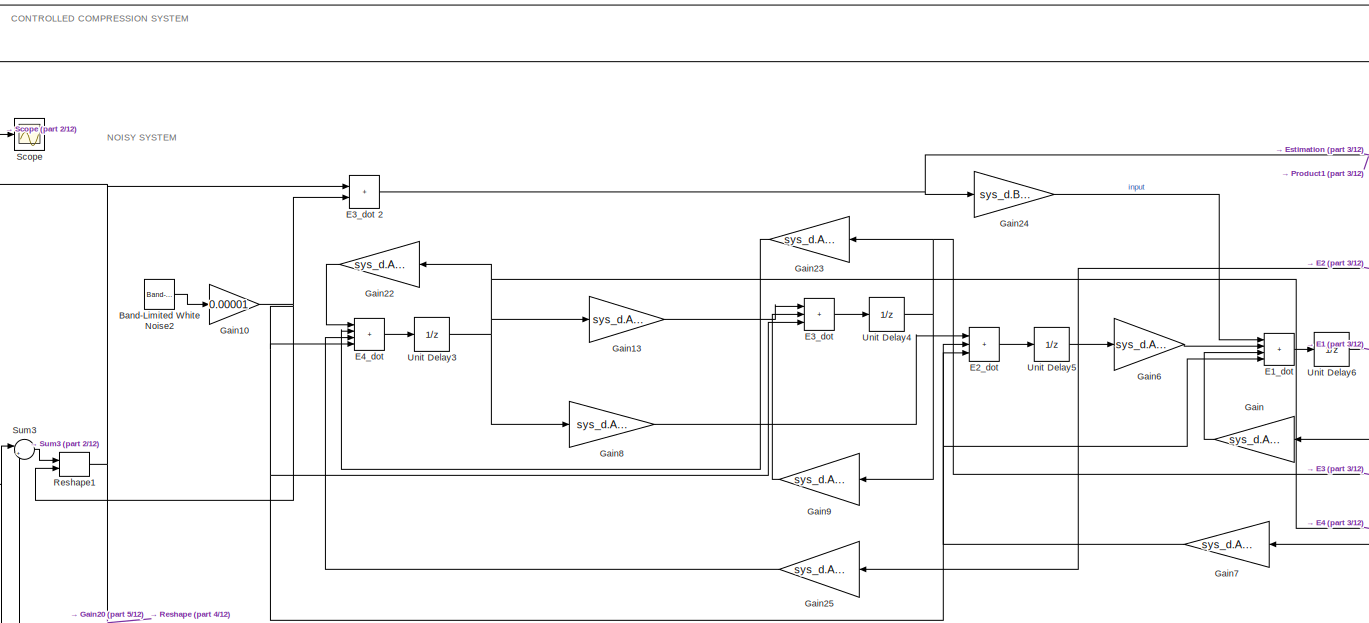
[diagram: root canvas - part 1/12, top center region]
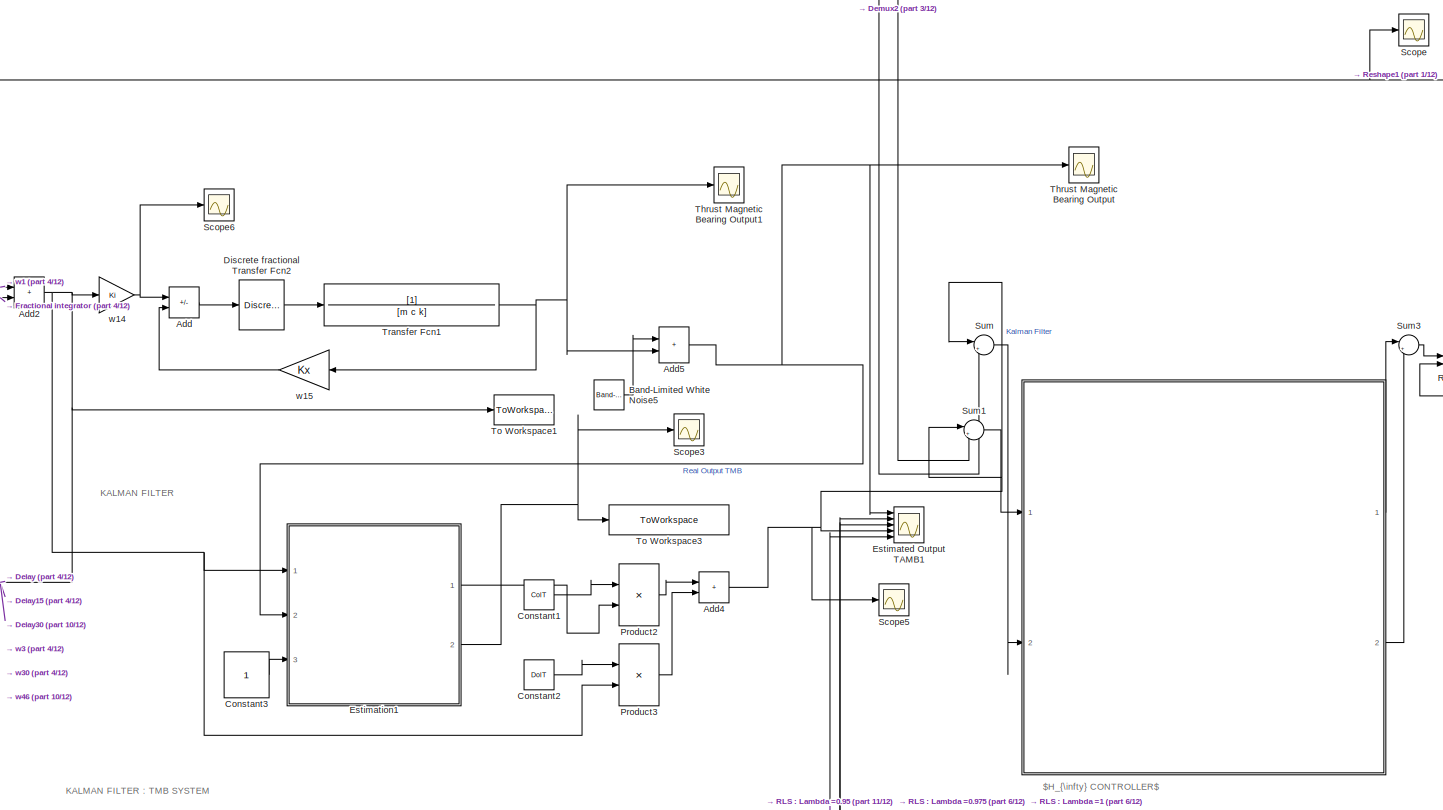
[diagram: root canvas - part 2/12, top left region]
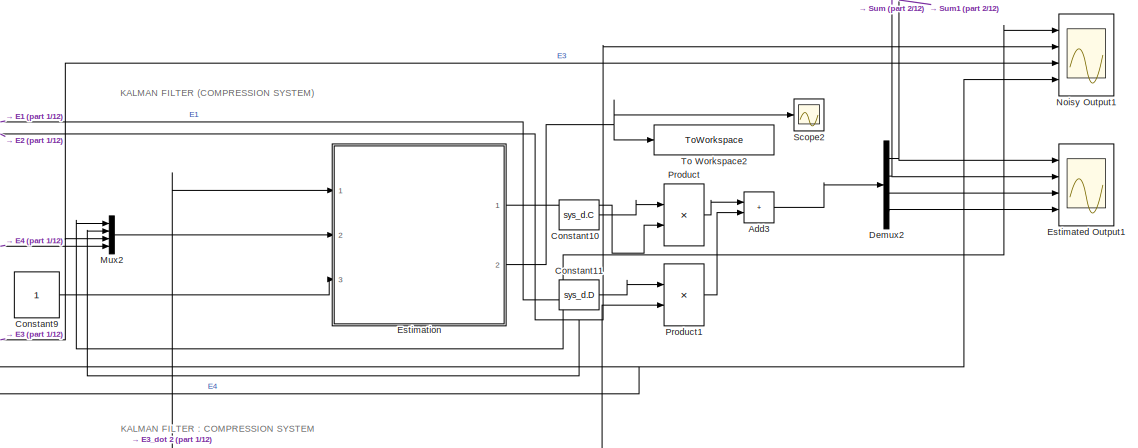
[diagram: root canvas - part 3/12, top right region]
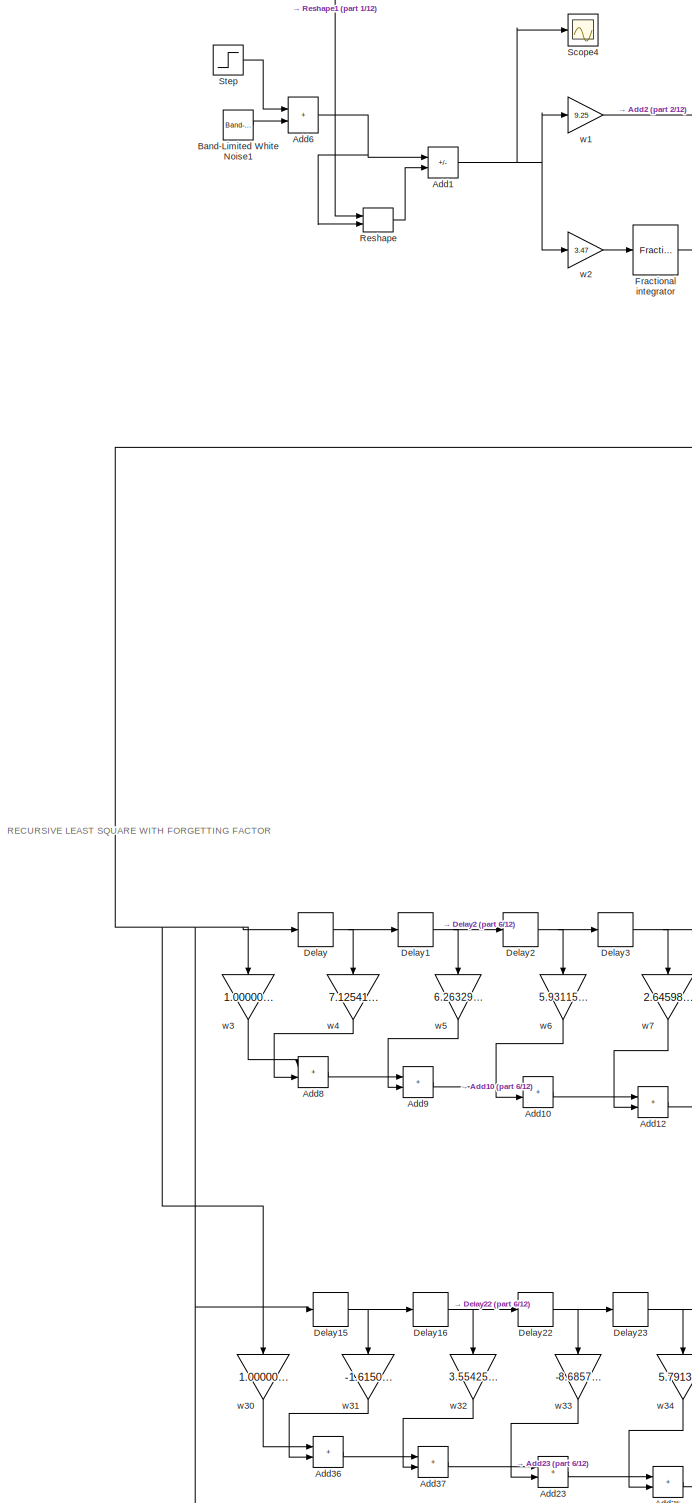
[diagram: root canvas - part 4/12, middle left region]
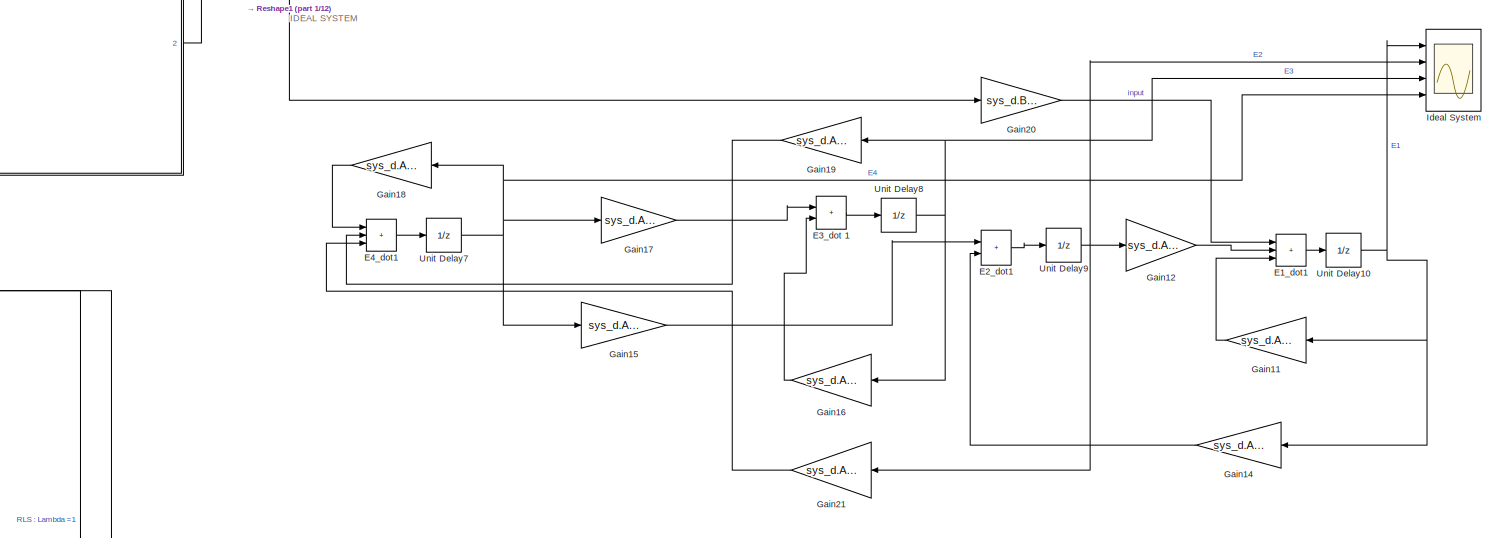
[diagram: root canvas - part 5/12, central region]
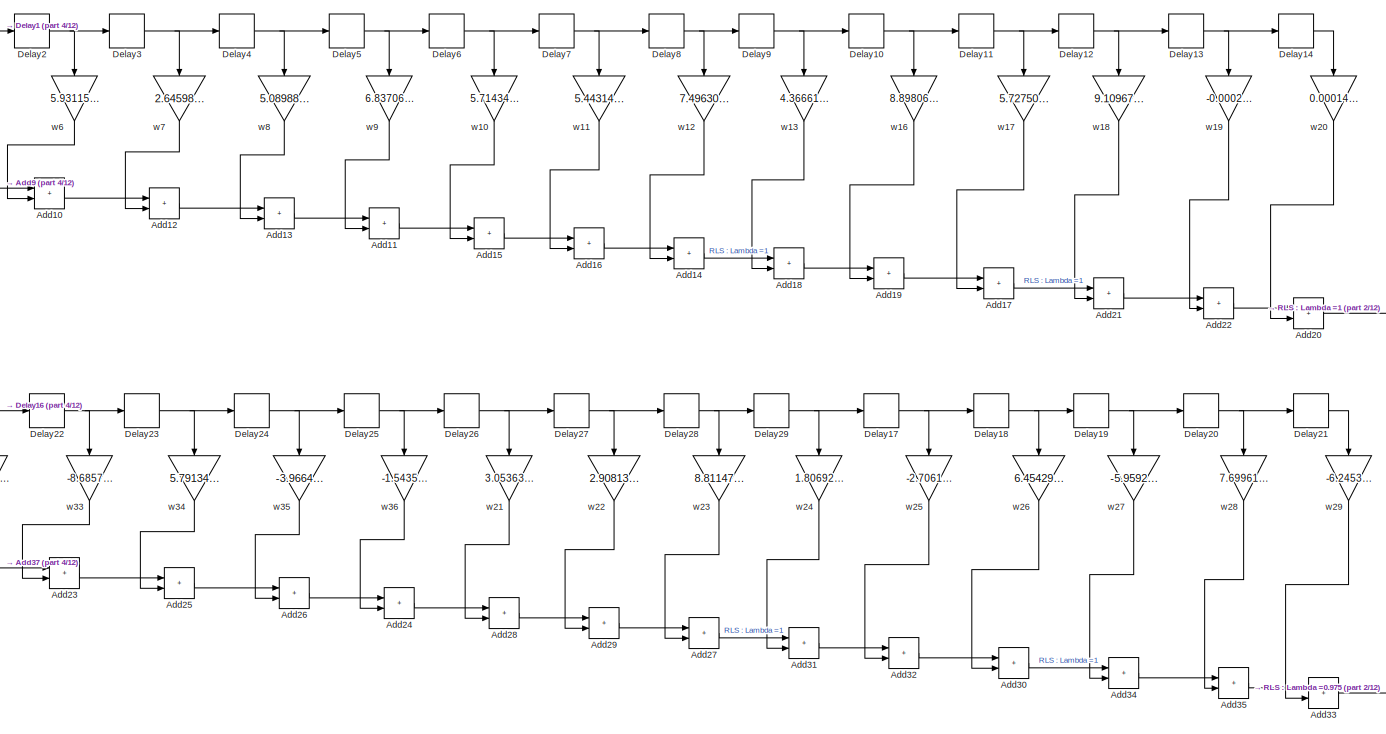
[diagram: root canvas - part 6/12, middle left region]
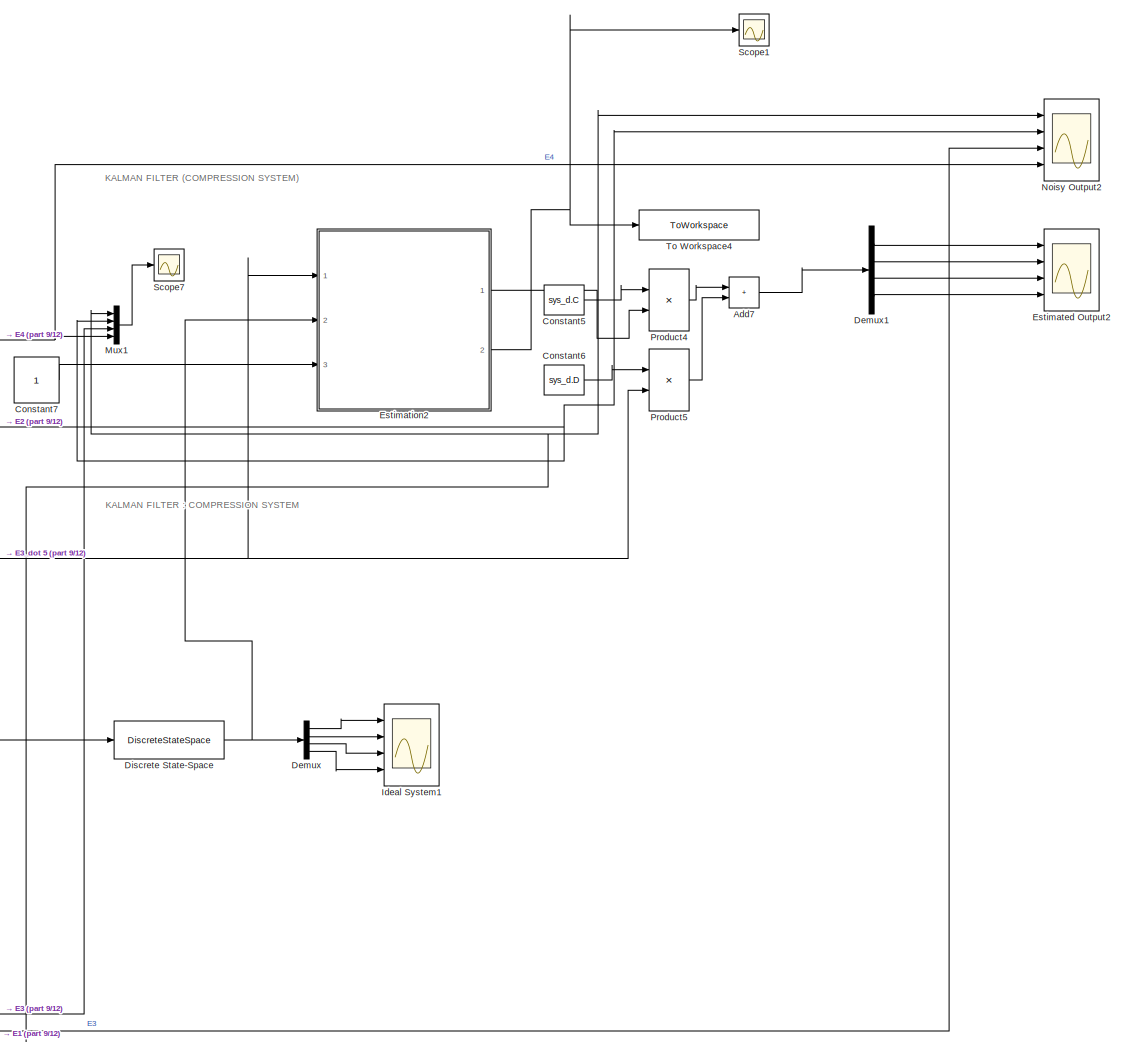
[diagram: root canvas - part 7/12, bottom right region]
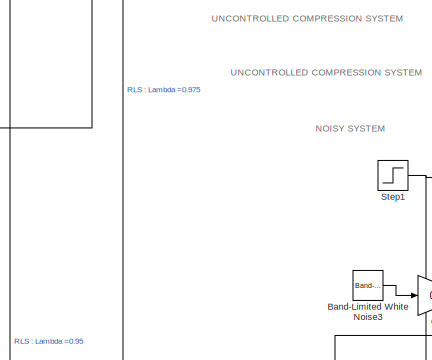
[diagram: root canvas - part 8/12, central region]
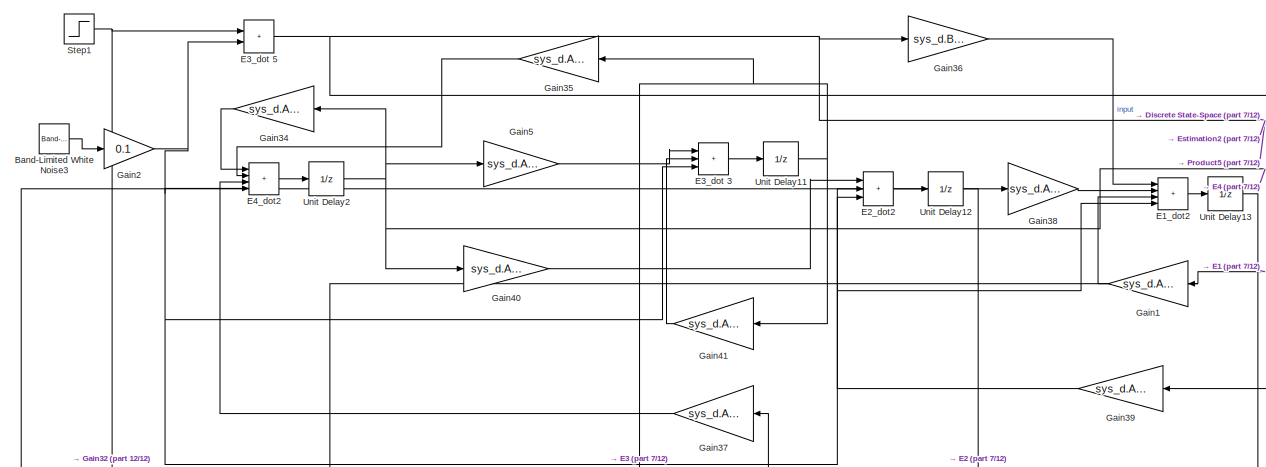
[diagram: root canvas - part 9/12, bottom center region]
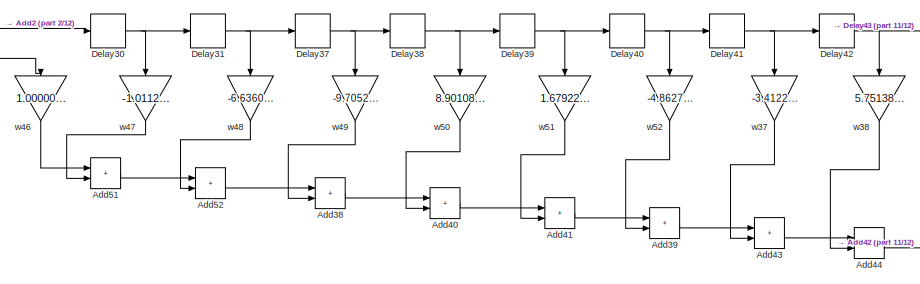
[diagram: root canvas - part 10/12, bottom left region]
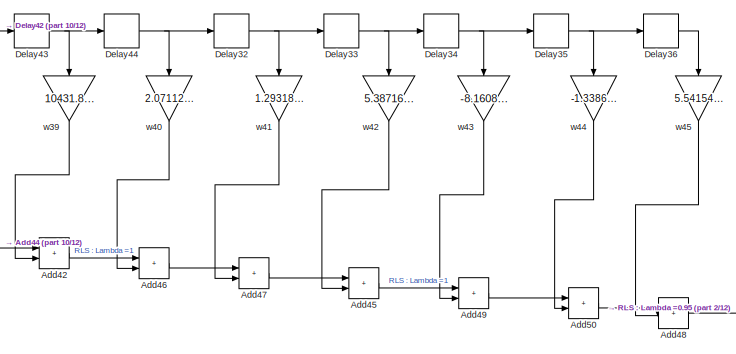
[diagram: root canvas - part 11/12, bottom left region]
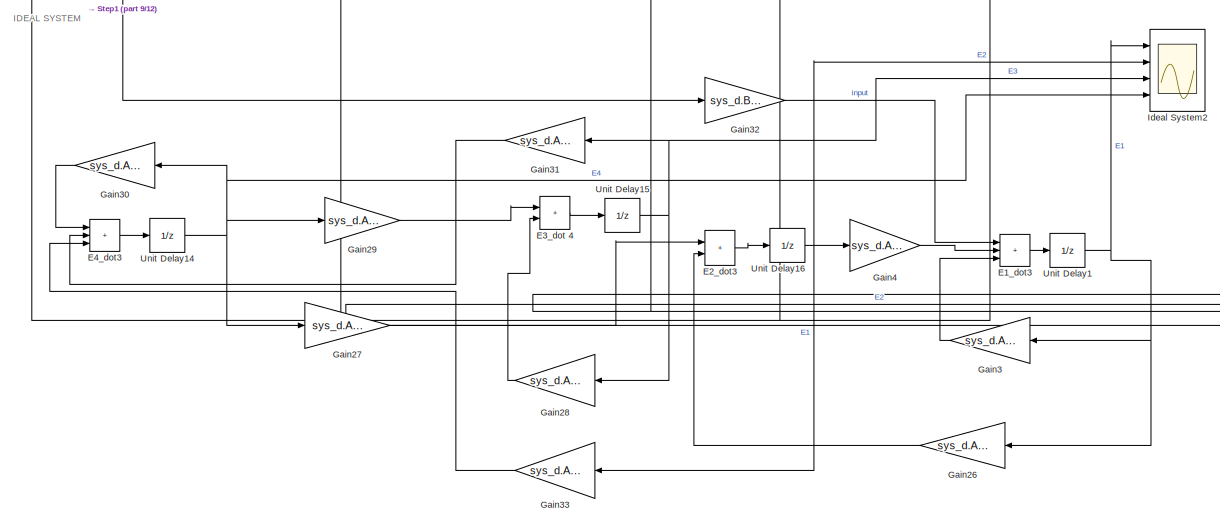
[diagram: root canvas - part 12/12, bottom center region]
MODEL slx_078a5ba67670
KIND model
CONFIG AbsTol = auto
CONFIG EnableMultiTasking = off
CONFIG FixedStep = auto
CONFIG MaxStep = auto
CONFIG MinStep = auto
CONFIG RelTol = 1e-3
CONFIG SampleTimeConstraint = Unconstrained
CONFIG SolverName = VariableStepAuto
CONFIG StartTime = 0.0
CONFIG StopTime = 100
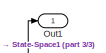
[diagram:   - part 1/3, top left region]
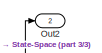
[diagram:   - part 2/3, top left region]
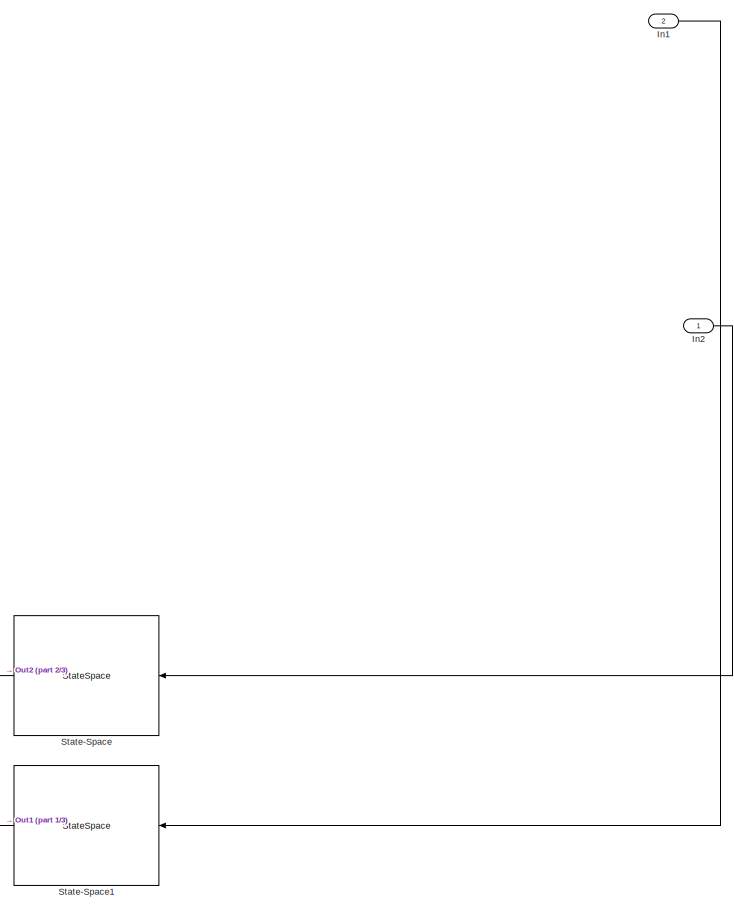
[diagram:   - part 3/3, right side, full height]
BLOCK [SubSystem]  
  Ports = [2, 2]
  RequestExecContextInheritance = off
BLOCK [Inport]  /In1
  Port = 2
BLOCK [Inport]  /In2
BLOCK [Outport]  /Out1
BLOCK [Outport]  /Out2
  Port = 2
BLOCK [StateSpace]  /State-Space
  A = K2.A
  B = K2.B
  C = K2.C
  D = K2.D
  InitialCondition = 0
  NameLocation = top
  Ports = [1, 1]
BLOCK [StateSpace]  /State-Space1
  A = K1.A
  B = K1.B
  C = K1.C
  D = K1.D
  InitialCondition = 0
  NameLocation = top
  Ports = [1, 1]
BLOCK [Sum] Add
  IconShape = rectangular
  Inputs = +-
  Ports = [2, 1]
BLOCK [Sum] Add1
  IconShape = rectangular
  Inputs = +-
  Ports = [2, 1]
BLOCK [Sum] Add10
  IconShape = rectangular
  Ports = [2, 1]
BLOCK [Sum] Add11
  IconShape = rectangular
  Ports = [2, 1]
BLOCK [Sum] Add12
  IconShape = rectangular
  Ports = [2, 1]
BLOCK [Sum] Add13
  IconShape = rectangular
  Ports = [2, 1]
BLOCK [Sum] Add14
  IconShape = rectangular
  Ports = [2, 1]
BLOCK [Sum] Add15
  IconShape = rectangular
  Ports = [2, 1]
BLOCK [Sum] Add16
  IconShape = rectangular
  Ports = [2, 1]
BLOCK [Sum] Add17
  IconShape = rectangular
  Ports = [2, 1]
BLOCK [Sum] Add18
  IconShape = rectangular
  Ports = [2, 1]
BLOCK [Sum] Add19
  IconShape = rectangular
  Ports = [2, 1]
BLOCK [Sum] Add2
  IconShape = rectangular
  Ports = [2, 1]
BLOCK [Sum] Add20
  IconShape = rectangular
  Ports = [2, 1]
BLOCK [Sum] Add21
  IconShape = rectangular
  Ports = [2, 1]
BLOCK [Sum] Add22
  IconShape = rectangular
  Ports = [2, 1]
BLOCK [Sum] Add23
  IconShape = rectangular
  Ports = [2, 1]
BLOCK [Sum] Add24
  IconShape = rectangular
  Ports = [2, 1]
BLOCK [Sum] Add25
  IconShape = rectangular
  Ports = [2, 1]
BLOCK [Sum] Add26
  IconShape = rectangular
  Ports = [2, 1]
BLOCK [Sum] Add27
  IconShape = rectangular
  Ports = [2, 1]
BLOCK [Sum] Add28
  IconShape = rectangular
  Ports = [2, 1]
BLOCK [Sum] Add29
  IconShape = rectangular
  Ports = [2, 1]
BLOCK [Sum] Add3
  IconShape = rectangular
  Ports = [2, 1]
BLOCK [Sum] Add30
  IconShape = rectangular
  Ports = [2, 1]
BLOCK [Sum] Add31
  IconShape = rectangular
  Ports = [2, 1]
BLOCK [Sum] Add32
  IconShape = rectangular
  Ports = [2, 1]
BLOCK [Sum] Add33
  IconShape = rectangular
  Ports = [2, 1]
BLOCK [Sum] Add34
  IconShape = rectangular
  Ports = [2, 1]
BLOCK [Sum] Add35
  IconShape = rectangular
  Ports = [2, 1]
BLOCK [Sum] Add36
  IconShape = rectangular
  Ports = [2, 1]
BLOCK [Sum] Add37
  IconShape = rectangular
  Ports = [2, 1]
BLOCK [Sum] Add38
  IconShape = rectangular
  Ports = [2, 1]
BLOCK [Sum] Add39
  IconShape = rectangular
  Ports = [2, 1]
BLOCK [Sum] Add4
  IconShape = rectangular
  Ports = [2, 1]
BLOCK [Sum] Add40
  IconShape = rectangular
  Ports = [2, 1]
BLOCK [Sum] Add41
  IconShape = rectangular
  Ports = [2, 1]
BLOCK [Sum] Add42
  IconShape = rectangular
  Ports = [2, 1]
BLOCK [Sum] Add43
  IconShape = rectangular
  Ports = [2, 1]
BLOCK [Sum] Add44
  IconShape = rectangular
  Ports = [2, 1]
BLOCK [Sum] Add45
  IconShape = rectangular
  Ports = [2, 1]
BLOCK [Sum] Add46
  IconShape = rectangular
  Ports = [2, 1]
BLOCK [Sum] Add47
  IconShape = rectangular
  Ports = [2, 1]
BLOCK [Sum] Add48
  IconShape = rectangular
  Ports = [2, 1]
BLOCK [Sum] Add49
  IconShape = rectangular
  Ports = [2, 1]
BLOCK [Sum] Add5
  IconShape = rectangular
  Ports = [2, 1]
BLOCK [Sum] Add50
  IconShape = rectangular
  Ports = [2, 1]
BLOCK [Sum] Add51
  IconShape = rectangular
  Ports = [2, 1]
BLOCK [Sum] Add52
  IconShape = rectangular
  Ports = [2, 1]
BLOCK [Sum] Add6
  IconShape = rectangular
  Ports = [2, 1]
BLOCK [Sum] Add7
  IconShape = rectangular
  Ports = [2, 1]
BLOCK [Sum] Add8
  IconShape = rectangular
  Ports = [2, 1]
BLOCK [Sum] Add9
  IconShape = rectangular
  Ports = [2, 1]
BLOCK [Reference] Band-Limited White Noise1  REF=simulink/Sources/Band-Limited
White Noise
  Ports = [0, 1]
  SourceBlock = simulink/Sources/Band-Limited\nWhite Noise
  SourceProductBaseCode = SL
  SourceType = Band-Limited White Noise.
BLOCK [Reference] Band-Limited White Noise2  REF=simulink/Sources/Band-Limited
White Noise
  Ports = [0, 1]
  SourceBlock = simulink/Sources/Band-Limited\nWhite Noise
  SourceProductBaseCode = SL
  SourceType = Band-Limited White Noise.
BLOCK [Reference] Band-Limited White Noise3  REF=simulink/Sources/Band-Limited
White Noise
  Ports = [0, 1]
  SourceBlock = simulink/Sources/Band-Limited\nWhite Noise
  SourceProductBaseCode = SL
  SourceType = Band-Limited White Noise.
BLOCK [Reference] Band-Limited White Noise5  REF=simulink/Sources/Band-Limited
White Noise
  Ports = [0, 1]
  SourceBlock = simulink/Sources/Band-Limited\nWhite Noise
  SourceProductBaseCode = SL
  SourceType = Band-Limited White Noise.
BLOCK [Constant] Constant1
  Value = ColT
  VectorParams1D = off
BLOCK [Constant] Constant10
  Value = sys_d.C
  VectorParams1D = off
BLOCK [Constant] Constant11
  Value = sys_d.D
  VectorParams1D = off
BLOCK [Constant] Constant2
  Value = DolT
  VectorParams1D = off
BLOCK [Constant] Constant3
  VectorParams1D = off
BLOCK [Constant] Constant5
  Value = sys_d.C
  VectorParams1D = off
BLOCK [Constant] Constant6
  Value = sys_d.D
  VectorParams1D = off
BLOCK [Constant] Constant7
  VectorParams1D = off
BLOCK [Constant] Constant9
  VectorParams1D = off
BLOCK [Delay] Delay
  DelayLength = 1
  InitialCondition = 0
  InputPortMap = u0
  Ports = [1, 1]
BLOCK [Delay] Delay1
  DelayLength = 1
  InitialCondition = 0
  InputPortMap = u0
  Ports = [1, 1]
BLOCK [Delay] Delay10
  DelayLength = 1
  InitialCondition = 0
  InputPortMap = u0
  Ports = [1, 1]
BLOCK [Delay] Delay11
  DelayLength = 1
  InitialCondition = 0
  InputPortMap = u0
  Ports = [1, 1]
BLOCK [Delay] Delay12
  DelayLength = 1
  InitialCondition = 0
  InputPortMap = u0
  Ports = [1, 1]
BLOCK [Delay] Delay13
  DelayLength = 1
  InitialCondition = 0
  InputPortMap = u0
  Ports = [1, 1]
BLOCK [Delay] Delay14
  DelayLength = 1
  InitialCondition = 0
  InputPortMap = u0
  Ports = [1, 1]
BLOCK [Delay] Delay15
  DelayLength = 1
  InitialCondition = 0
  InputPortMap = u0
  Ports = [1, 1]
BLOCK [Delay] Delay16
  DelayLength = 1
  InitialCondition = 0
  InputPortMap = u0
  Ports = [1, 1]
BLOCK [Delay] Delay17
  DelayLength = 1
  InitialCondition = 0
  InputPortMap = u0
  Ports = [1, 1]
BLOCK [Delay] Delay18
  DelayLength = 1
  InitialCondition = 0
  InputPortMap = u0
  Ports = [1, 1]
BLOCK [Delay] Delay19
  DelayLength = 1
  InitialCondition = 0
  InputPortMap = u0
  Ports = [1, 1]
BLOCK [Delay] Delay2
  DelayLength = 1
  InitialCondition = 0
  InputPortMap = u0
  Ports = [1, 1]
BLOCK [Delay] Delay20
  DelayLength = 1
  InitialCondition = 0
  InputPortMap = u0
  Ports = [1, 1]
BLOCK [Delay] Delay21
  DelayLength = 1
  InitialCondition = 0
  InputPortMap = u0
  Ports = [1, 1]
BLOCK [Delay] Delay22
  DelayLength = 1
  InitialCondition = 0
  InputPortMap = u0
  Ports = [1, 1]
BLOCK [Delay] Delay23
  DelayLength = 1
  InitialCondition = 0
  InputPortMap = u0
  Ports = [1, 1]
BLOCK [Delay] Delay24
  DelayLength = 1
  InitialCondition = 0
  InputPortMap = u0
  Ports = [1, 1]
BLOCK [Delay] Delay25
  DelayLength = 1
  InitialCondition = 0
  InputPortMap = u0
  Ports = [1, 1]
BLOCK [Delay] Delay26
  DelayLength = 1
  InitialCondition = 0
  InputPortMap = u0
  Ports = [1, 1]
BLOCK [Delay] Delay27
  DelayLength = 1
  InitialCondition = 0
  InputPortMap = u0
  Ports = [1, 1]
BLOCK [Delay] Delay28
  DelayLength = 1
  InitialCondition = 0
  InputPortMap = u0
  Ports = [1, 1]
BLOCK [Delay] Delay29
  DelayLength = 1
  InitialCondition = 0
  InputPortMap = u0
  Ports = [1, 1]
BLOCK [Delay] Delay3
  DelayLength = 1
  InitialCondition = 0
  InputPortMap = u0
  Ports = [1, 1]
BLOCK [Delay] Delay30
  DelayLength = 1
  InitialCondition = 0
  InputPortMap = u0
  Ports = [1, 1]
BLOCK [Delay] Delay31
  DelayLength = 1
  InitialCondition = 0
  InputPortMap = u0
  Ports = [1, 1]
BLOCK [Delay] Delay32
  DelayLength = 1
  InitialCondition = 0
  InputPortMap = u0
  Ports = [1, 1]
BLOCK [Delay] Delay33
  DelayLength = 1
  InitialCondition = 0
  InputPortMap = u0
  Ports = [1, 1]
BLOCK [Delay] Delay34
  DelayLength = 1
  InitialCondition = 0
  InputPortMap = u0
  Ports = [1, 1]
BLOCK [Delay] Delay35
  DelayLength = 1
  InitialCondition = 0
  InputPortMap = u0
  Ports = [1, 1]
BLOCK [Delay] Delay36
  DelayLength = 1
  InitialCondition = 0
  InputPortMap = u0
  Ports = [1, 1]
BLOCK [Delay] Delay37
  DelayLength = 1
  InitialCondition = 0
  InputPortMap = u0
  Ports = [1, 1]
BLOCK [Delay] Delay38
  DelayLength = 1
  InitialCondition = 0
  InputPortMap = u0
  Ports = [1, 1]
BLOCK [Delay] Delay39
  DelayLength = 1
  InitialCondition = 0
  InputPortMap = u0
  Ports = [1, 1]
BLOCK [Delay] Delay4
  DelayLength = 1
  InitialCondition = 0
  InputPortMap = u0
  Ports = [1, 1]
BLOCK [Delay] Delay40
  DelayLength = 1
  InitialCondition = 0
  InputPortMap = u0
  Ports = [1, 1]
BLOCK [Delay] Delay41
  DelayLength = 1
  InitialCondition = 0
  InputPortMap = u0
  Ports = [1, 1]
BLOCK [Delay] Delay42
  DelayLength = 1
  InitialCondition = 0
  InputPortMap = u0
  Ports = [1, 1]
BLOCK [Delay] Delay43
  DelayLength = 1
  InitialCondition = 0
  InputPortMap = u0
  Ports = [1, 1]
BLOCK [Delay] Delay44
  DelayLength = 1
  InitialCondition = 0
  InputPortMap = u0
  Ports = [1, 1]
BLOCK [Delay] Delay5
  DelayLength = 1
  InitialCondition = 0
  InputPortMap = u0
  Ports = [1, 1]
BLOCK [Delay] Delay6
  DelayLength = 1
  InitialCondition = 0
  InputPortMap = u0
  Ports = [1, 1]
BLOCK [Delay] Delay7
  DelayLength = 1
  InitialCondition = 0
  InputPortMap = u0
  Ports = [1, 1]
BLOCK [Delay] Delay8
  DelayLength = 1
  InitialCondition = 0
  InputPortMap = u0
  Ports = [1, 1]
BLOCK [Delay] Delay9
  DelayLength = 1
  InitialCondition = 0
  InputPortMap = u0
  Ports = [1, 1]
BLOCK [Demux] Demux
  Ports = [1, 4]
BLOCK [Demux] Demux1
  Ports = [1, 4]
BLOCK [Demux] Demux2
  Ports = [1, 4]
BLOCK [DiscreteStateSpace] Discrete State-Space
  A = sys_d.A
  B = sys_d.B
  C = sys_d.C
  D = sys_d.D
  SampleTime = 0.005
BLOCK [Reference] Discrete fractional Transfer Fcn2  REF=fod/Discrete fractional  (lib defined in slx_5cb2d42c7bef)
Transfer Fcn
  Ports = [1, 1]
  SourceBlock = fod/Discrete fractional\nTransfer Fcn
  SourceProductName = FOMCON Toolbox
  SourceType = Discrete Fractional Transfer Function
BLOCK [Sum] E1_dot
  IconShape = rectangular
  Inputs = ++++
  Ports = [4, 1]
BLOCK [Sum] E1_dot1
  IconShape = rectangular
  Inputs = +++
  Ports = [3, 1]
BLOCK [Sum] E1_dot2
  IconShape = rectangular
  Inputs = ++++
  Ports = [4, 1]
BLOCK [Sum] E1_dot3
  IconShape = rectangular
  Inputs = +++
  Ports = [3, 1]
BLOCK [Sum] E2_dot
  IconShape = rectangular
  Inputs = +++
  Ports = [3, 1]
BLOCK [Sum] E2_dot1
  IconShape = rectangular
  Ports = [2, 1]
BLOCK [Sum] E2_dot2
  IconShape = rectangular
  Inputs = +++
  Ports = [3, 1]
BLOCK [Sum] E2_dot3
  IconShape = rectangular
  Ports = [2, 1]
BLOCK [Sum] E3_dot 
  IconShape = rectangular
  Inputs = +++
  Ports = [3, 1]
BLOCK [Sum] E3_dot 1
  IconShape = rectangular
  Ports = [2, 1]
BLOCK [Sum] E3_dot 2
  IconShape = rectangular
  Ports = [2, 1]
BLOCK [Sum] E3_dot 3
  IconShape = rectangular
  Inputs = +++
  Ports = [3, 1]
BLOCK [Sum] E3_dot 4
  IconShape = rectangular
  Ports = [2, 1]
BLOCK [Sum] E3_dot 5
  IconShape = rectangular
  Ports = [2, 1]
BLOCK [Sum] E4_dot
  IconShape = rectangular
  Inputs = ++++
  Ports = [4, 1]
BLOCK [Sum] E4_dot1
  IconShape = rectangular
  Inputs = +++
  Ports = [3, 1]
BLOCK [Sum] E4_dot2
  IconShape = rectangular
  Inputs = ++++
  Ports = [4, 1]
BLOCK [Sum] E4_dot3
  IconShape = rectangular
  Inputs = +++
  Ports = [3, 1]
BLOCK [Scope] Estimated Output TAMB1
  Floating = off
  NumInputPorts = 5
  Ports = [5]
  ScopeSpecificationString = Simulink.scopes.TimeScopeBlockCfg('CurrentConfiguration', extmgr.ConfigurationSet(extmgr.Configuration('Core','General UI',true),extmgr.Configuration('Core','Source UI',true),extmgr.Configuration('Sources','WiredSimulink',true,'DataLoggingVariableName','ScopeData1'),extmgr.Configuration('Visuals','Time Domain',true,'SerializedDisplays',{struct('MinYLimReal','-20.71379','MaxYLimReal','114.04848','Y...<+1530ch>
BLOCK [Scope] Estimated Output1
  Floating = off
  NumInputPorts = 4
  Ports = [4]
  ScopeSpecificationString = Simulink.scopes.TimeScopeBlockCfg('CurrentConfiguration', extmgr.ConfigurationSet(extmgr.Configuration('Core','General UI',true),extmgr.Configuration('Core','Source UI',true),extmgr.Configuration('Sources','WiredSimulink',true,'DataLoggingVariableName','ScopeData1'),extmgr.Configuration('Visuals','Time Domain',true,'SerializedDisplays',{struct('MinYLimReal','-0.00015','MaxYLimReal','0.00023','YLab...<+3796ch>
BLOCK [Scope] Estimated Output2
  Floating = off
  NumInputPorts = 4
  Ports = [4]
  ScopeSpecificationString = Simulink.scopes.TimeScopeBlockCfg('CurrentConfiguration', extmgr.ConfigurationSet(extmgr.Configuration('Core','General UI',true),extmgr.Configuration('Core','Source UI',true),extmgr.Configuration('Sources','WiredSimulink',true,'DataLoggingVariableName','ScopeData1'),extmgr.Configuration('Visuals','Time Domain',true,'SerializedDisplays',{struct('MinYLimReal','-1.42552','MaxYLimReal','1.48445','YLab...<+3792ch>
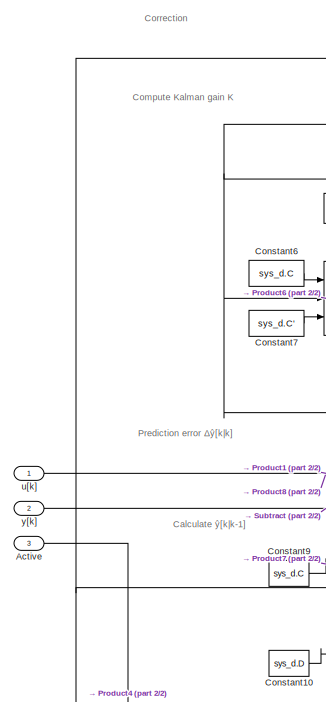
[diagram: Estimation - part 1/2, left side, full height]
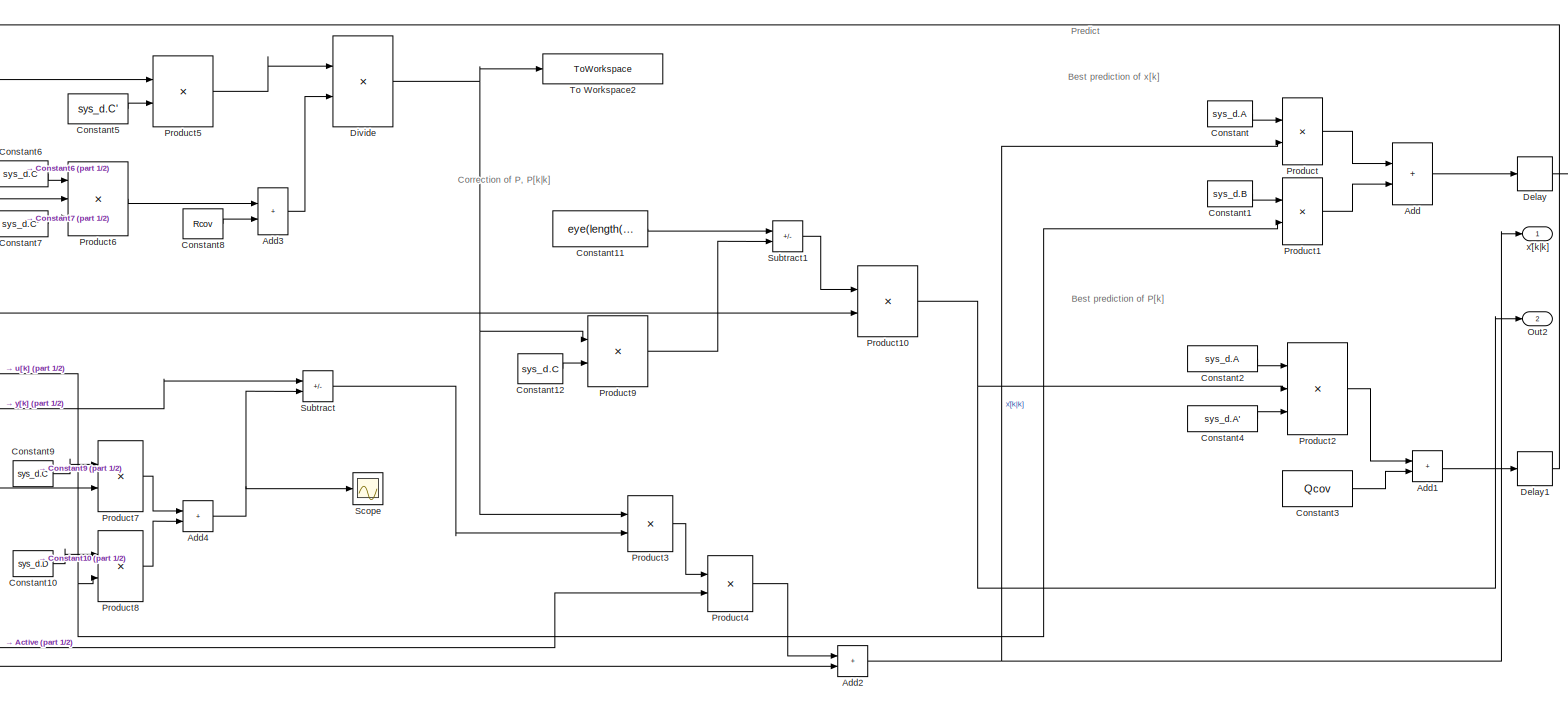
[diagram: Estimation - part 2/2, most of the canvas]
BLOCK [SubSystem] Estimation
  Ports = [3, 2]
  RequestExecContextInheritance = off
BLOCK [Inport] Estimation/Active
  Port = 3
BLOCK [Sum] Estimation/Add
  IconShape = rectangular
  Ports = [2, 1]
BLOCK [Sum] Estimation/Add1
  IconShape = rectangular
  Ports = [2, 1]
BLOCK [Sum] Estimation/Add2
  IconShape = rectangular
  Ports = [2, 1]
BLOCK [Sum] Estimation/Add3
  IconShape = rectangular
  Ports = [2, 1]
BLOCK [Sum] Estimation/Add4
  IconShape = rectangular
  Ports = [2, 1]
BLOCK [Constant] Estimation/Constant
  Value = sys_d.A
  VectorParams1D = off
BLOCK [Constant] Estimation/Constant1
  Value = sys_d.B
  VectorParams1D = off
BLOCK [Constant] Estimation/Constant10
  Value = sys_d.D
  VectorParams1D = off
BLOCK [Constant] Estimation/Constant11
  Value = eye(length(sys_d.C))
  VectorParams1D = off
BLOCK [Constant] Estimation/Constant12
  Value = sys_d.C
  VectorParams1D = off
BLOCK [Constant] Estimation/Constant2
  Value = sys_d.A
  VectorParams1D = off
BLOCK [Constant] Estimation/Constant3
  Value = Qcov
  VectorParams1D = off
BLOCK [Constant] Estimation/Constant4
  Value = sys_d.A'
  VectorParams1D = off
BLOCK [Constant] Estimation/Constant5
  Value = sys_d.C'
  VectorParams1D = off
BLOCK [Constant] Estimation/Constant6
  Value = sys_d.C
  VectorParams1D = off
BLOCK [Constant] Estimation/Constant7
  Value = sys_d.C'
  VectorParams1D = off
BLOCK [Constant] Estimation/Constant8
  Value = Rcov
  VectorParams1D = off
BLOCK [Constant] Estimation/Constant9
  Value = sys_d.C
  VectorParams1D = off
BLOCK [Delay] Estimation/Delay
  DelayLength = 1
  InitialCondition = x0c
  InputPortMap = u0
  Ports = [1, 1]
BLOCK [Delay] Estimation/Delay1
  DelayLength = 1
  InitialCondition = P0
  InputPortMap = u0
  Ports = [1, 1]
BLOCK [Product] Estimation/Divide
  Inputs = */
  Multiplication = Matrix(*)
  Ports = [2, 1]
BLOCK [Outport] Estimation/Out2
  Port = 2
BLOCK [Product] Estimation/Product
  Multiplication = Matrix(*)
  Ports = [2, 1]
BLOCK [Product] Estimation/Product1
  Multiplication = Matrix(*)
  Ports = [2, 1]
BLOCK [Product] Estimation/Product10
  Multiplication = Matrix(*)
  Ports = [2, 1]
BLOCK [Product] Estimation/Product2
  Inputs = 3
  Multiplication = Matrix(*)
  Ports = [3, 1]
BLOCK [Product] Estimation/Product3
  Multiplication = Matrix(*)
  Ports = [2, 1]
BLOCK [Product] Estimation/Product4
  Multiplication = Matrix(*)
  Ports = [2, 1]
BLOCK [Product] Estimation/Product5
  Multiplication = Matrix(*)
  Ports = [2, 1]
BLOCK [Product] Estimation/Product6
  Inputs = 3
  Multiplication = Matrix(*)
  Ports = [3, 1]
BLOCK [Product] Estimation/Product7
  Multiplication = Matrix(*)
  Ports = [2, 1]
BLOCK [Product] Estimation/Product8
  Multiplication = Matrix(*)
  Ports = [2, 1]
BLOCK [Product] Estimation/Product9
  Multiplication = Matrix(*)
  Ports = [2, 1]
BLOCK [Scope] Estimation/Scope
  Floating = off
  NumInputPorts = 1
  Ports = [1]
  ScopeSpecificationString = Simulink.scopes.TimeScopeBlockCfg('CurrentConfiguration', extmgr.ConfigurationSet(extmgr.Configuration('Core','General UI',true),extmgr.Configuration('Core','Source UI',true),extmgr.Configuration('Sources','WiredSimulink',true,'DataLoggingVariableName','ScopeData2'),extmgr.Configuration('Visuals','Time Domain',true,'SerializedDisplays',{struct('MinYLimReal','-244.28559','MaxYLimReal','99.36507','Y...<+1418ch>  <repeated x3 — deduplicated; at blocks: Scope>
BLOCK [Sum] Estimation/Subtract
  IconShape = rectangular
  Inputs = +-
  Ports = [2, 1]
BLOCK [Sum] Estimation/Subtract1
  IconShape = rectangular
  Inputs = +-
  Ports = [2, 1]
BLOCK [ToWorkspace] Estimation/To Workspace2
  FixptAsFi = on
  MaxDataPoints = 1
  Ports = [1]
  SampleTime = -1
  VariableName = Kalman_Gain_Stable
BLOCK [Inport] Estimation/u[k]
BLOCK [Outport] Estimation/x̂[k|k]
BLOCK [Inport] Estimation/y[k]
  Port = 2
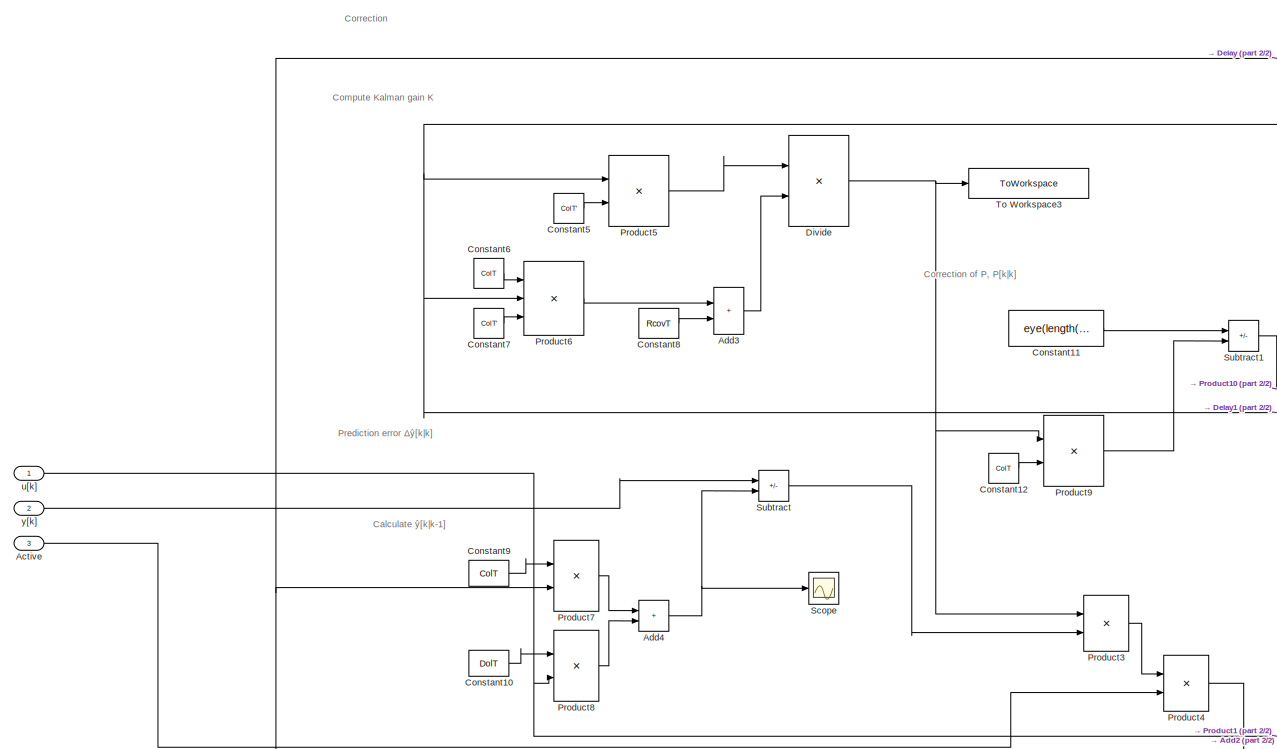
[diagram: Estimation1 - part 1/2, left side, full height]
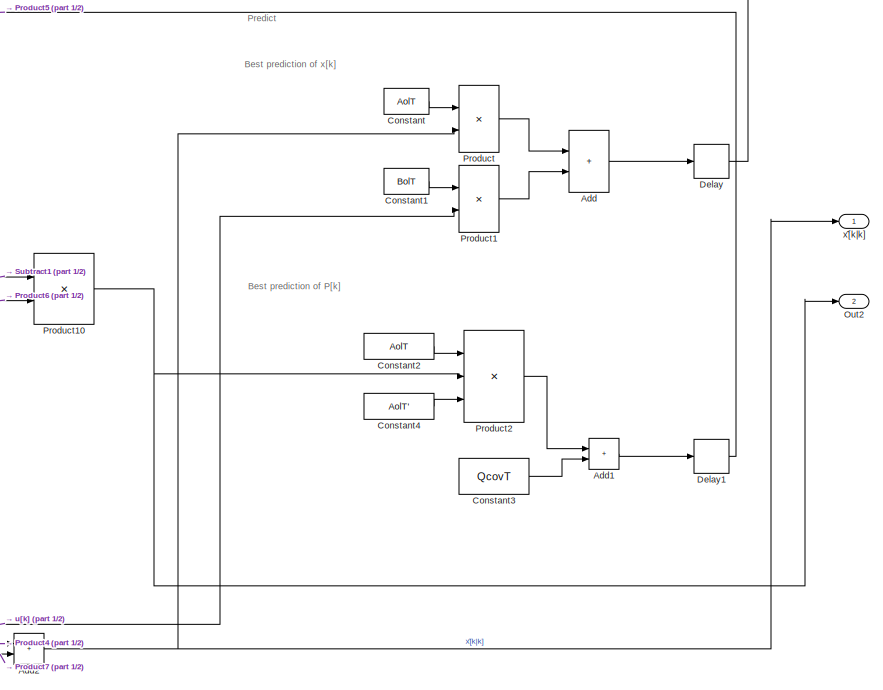
[diagram: Estimation1 - part 2/2, right side, full height]
BLOCK [SubSystem] Estimation1
  Ports = [3, 2]
  RequestExecContextInheritance = off
BLOCK [Inport] Estimation1/Active
  Port = 3
BLOCK [Sum] Estimation1/Add
  IconShape = rectangular
  Ports = [2, 1]
BLOCK [Sum] Estimation1/Add1
  IconShape = rectangular
  Ports = [2, 1]
BLOCK [Sum] Estimation1/Add2
  IconShape = rectangular
  Ports = [2, 1]
BLOCK [Sum] Estimation1/Add3
  IconShape = rectangular
  Ports = [2, 1]
BLOCK [Sum] Estimation1/Add4
  IconShape = rectangular
  Ports = [2, 1]
BLOCK [Constant] Estimation1/Constant
  Value = AolT
  VectorParams1D = off
BLOCK [Constant] Estimation1/Constant1
  Value = BolT
  VectorParams1D = off
BLOCK [Constant] Estimation1/Constant10
  Value = DolT
  VectorParams1D = off
BLOCK [Constant] Estimation1/Constant11
  Value = eye(length(ColT))
  VectorParams1D = off
BLOCK [Constant] Estimation1/Constant12
  Value = ColT
  VectorParams1D = off
BLOCK [Constant] Estimation1/Constant2
  Value = AolT
  VectorParams1D = off
BLOCK [Constant] Estimation1/Constant3
  Value = QcovT
  VectorParams1D = off
BLOCK [Constant] Estimation1/Constant4
  Value = AolT'
  VectorParams1D = off
BLOCK [Constant] Estimation1/Constant5
  Value = ColT'
  VectorParams1D = off
BLOCK [Constant] Estimation1/Constant6
  Value = ColT
  VectorParams1D = off
BLOCK [Constant] Estimation1/Constant7
  Value = ColT'
  VectorParams1D = off
BLOCK [Constant] Estimation1/Constant8
  Value = RcovT
  VectorParams1D = off
BLOCK [Constant] Estimation1/Constant9
  Value = ColT
  VectorParams1D = off
BLOCK [Delay] Estimation1/Delay
  DelayLength = 1
  InitialCondition = x0T
  InputPortMap = u0
  Ports = [1, 1]
BLOCK [Delay] Estimation1/Delay1
  DelayLength = 1
  InitialCondition = P0T
  InputPortMap = u0
  Ports = [1, 1]
BLOCK [Product] Estimation1/Divide
  Inputs = */
  Multiplication = Matrix(*)
  Ports = [2, 1]
BLOCK [Outport] Estimation1/Out2
  Port = 2
BLOCK [Product] Estimation1/Product
  Multiplication = Matrix(*)
  Ports = [2, 1]
BLOCK [Product] Estimation1/Product1
  Multiplication = Matrix(*)
  Ports = [2, 1]
BLOCK [Product] Estimation1/Product10
  Multiplication = Matrix(*)
  Ports = [2, 1]
BLOCK [Product] Estimation1/Product2
  Inputs = 3
  Multiplication = Matrix(*)
  Ports = [3, 1]
BLOCK [Product] Estimation1/Product3
  Multiplication = Matrix(*)
  Ports = [2, 1]
BLOCK [Product] Estimation1/Product4
  Multiplication = Matrix(*)
  Ports = [2, 1]
BLOCK [Product] Estimation1/Product5
  Multiplication = Matrix(*)
  Ports = [2, 1]
BLOCK [Product] Estimation1/Product6
  Inputs = 3
  Multiplication = Matrix(*)
  Ports = [3, 1]
BLOCK [Product] Estimation1/Product7
  Multiplication = Matrix(*)
  Ports = [2, 1]
BLOCK [Product] Estimation1/Product8
  Multiplication = Matrix(*)
  Ports = [2, 1]
BLOCK [Product] Estimation1/Product9
  Multiplication = Matrix(*)
  Ports = [2, 1]
BLOCK [Scope] Estimation1/Scope
  Floating = off
  NumInputPorts = 1
  Ports = [1]
BLOCK [Sum] Estimation1/Subtract
  IconShape = rectangular
  Inputs = +-
  Ports = [2, 1]
BLOCK [Sum] Estimation1/Subtract1
  IconShape = rectangular
  Inputs = +-
  Ports = [2, 1]
BLOCK [ToWorkspace] Estimation1/To Workspace3
  FixptAsFi = on
  MaxDataPoints = 1
  Ports = [1]
  SampleTime = -1
  VariableName = Kalman_Gain_TMB
BLOCK [Inport] Estimation1/u[k]
BLOCK [Outport] Estimation1/x̂[k|k]
BLOCK [Inport] Estimation1/y[k]
  Port = 2
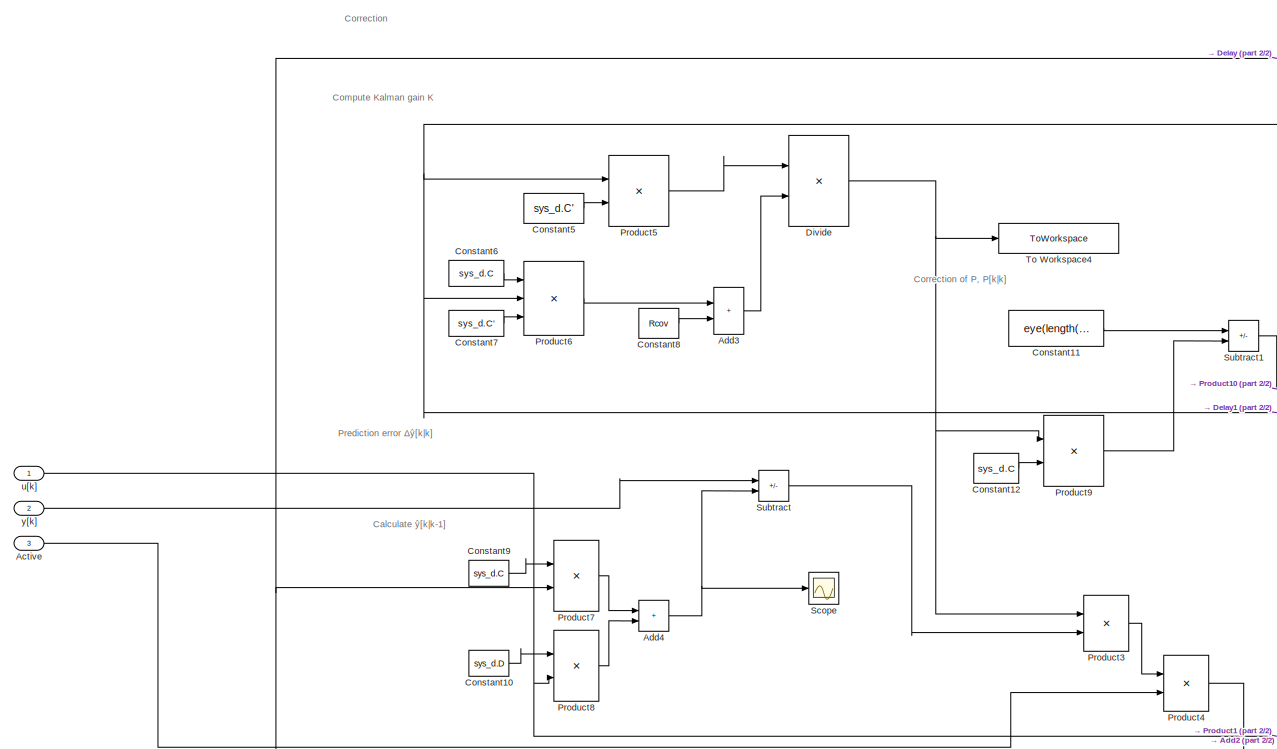
[diagram: Estimation2 - part 1/2, left side, full height]
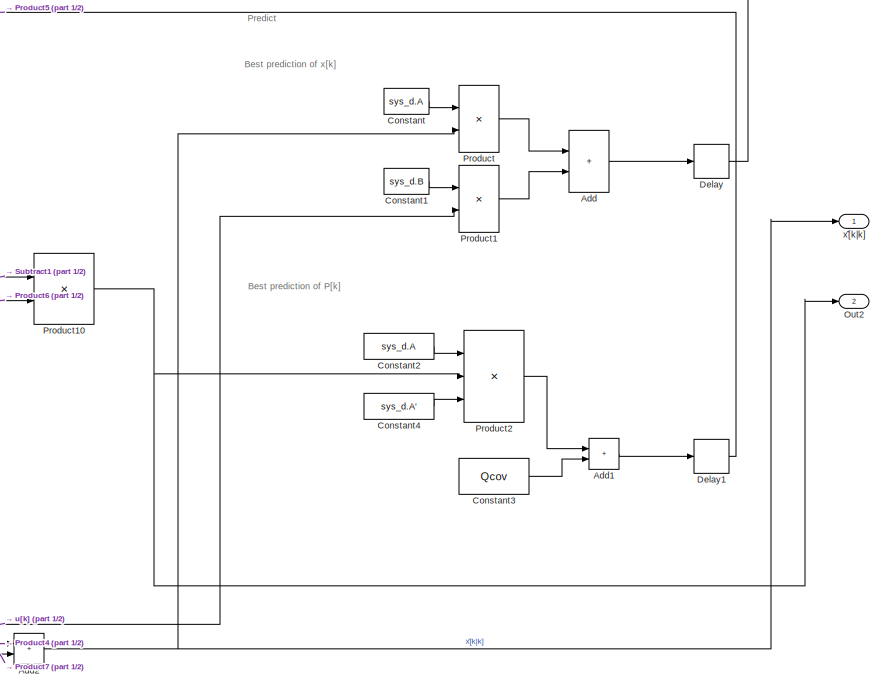
[diagram: Estimation2 - part 2/2, right side, full height]
BLOCK [SubSystem] Estimation2
  Ports = [3, 2]
  RequestExecContextInheritance = off
BLOCK [Inport] Estimation2/Active
  Port = 3
BLOCK [Sum] Estimation2/Add
  IconShape = rectangular
  Ports = [2, 1]
BLOCK [Sum] Estimation2/Add1
  IconShape = rectangular
  Ports = [2, 1]
BLOCK [Sum] Estimation2/Add2
  IconShape = rectangular
  Ports = [2, 1]
BLOCK [Sum] Estimation2/Add3
  IconShape = rectangular
  Ports = [2, 1]
BLOCK [Sum] Estimation2/Add4
  IconShape = rectangular
  Ports = [2, 1]
BLOCK [Constant] Estimation2/Constant
  Value = sys_d.A
  VectorParams1D = off
BLOCK [Constant] Estimation2/Constant1
  Value = sys_d.B
  VectorParams1D = off
BLOCK [Constant] Estimation2/Constant10
  Value = sys_d.D
  VectorParams1D = off
BLOCK [Constant] Estimation2/Constant11
  Value = eye(length(sys_d.C))
  VectorParams1D = off
BLOCK [Constant] Estimation2/Constant12
  Value = sys_d.C
  VectorParams1D = off
BLOCK [Constant] Estimation2/Constant2
  Value = sys_d.A
  VectorParams1D = off
BLOCK [Constant] Estimation2/Constant3
  Value = Qcov
  VectorParams1D = off
BLOCK [Constant] Estimation2/Constant4
  Value = sys_d.A'
  VectorParams1D = off
BLOCK [Constant] Estimation2/Constant5
  Value = sys_d.C'
  VectorParams1D = off
BLOCK [Constant] Estimation2/Constant6
  Value = sys_d.C
  VectorParams1D = off
BLOCK [Constant] Estimation2/Constant7
  Value = sys_d.C'
  VectorParams1D = off
BLOCK [Constant] Estimation2/Constant8
  Value = Rcov
  VectorParams1D = off
BLOCK [Constant] Estimation2/Constant9
  Value = sys_d.C
  VectorParams1D = off
BLOCK [Delay] Estimation2/Delay
  DelayLength = 1
  InitialCondition = x0c
  InputPortMap = u0
  Ports = [1, 1]
BLOCK [Delay] Estimation2/Delay1
  DelayLength = 1
  InitialCondition = P0
  InputPortMap = u0
  Ports = [1, 1]
BLOCK [Product] Estimation2/Divide
  Inputs = */
  Multiplication = Matrix(*)
  Ports = [2, 1]
BLOCK [Outport] Estimation2/Out2
  Port = 2
BLOCK [Product] Estimation2/Product
  Multiplication = Matrix(*)
  Ports = [2, 1]
BLOCK [Product] Estimation2/Product1
  Multiplication = Matrix(*)
  Ports = [2, 1]
BLOCK [Product] Estimation2/Product10
  Multiplication = Matrix(*)
  Ports = [2, 1]
BLOCK [Product] Estimation2/Product2
  Inputs = 3
  Multiplication = Matrix(*)
  Ports = [3, 1]
BLOCK [Product] Estimation2/Product3
  Multiplication = Matrix(*)
  Ports = [2, 1]
BLOCK [Product] Estimation2/Product4
  Multiplication = Matrix(*)
  Ports = [2, 1]
BLOCK [Product] Estimation2/Product5
  Multiplication = Matrix(*)
  Ports = [2, 1]
BLOCK [Product] Estimation2/Product6
  Inputs = 3
  Multiplication = Matrix(*)
  Ports = [3, 1]
BLOCK [Product] Estimation2/Product7
  Multiplication = Matrix(*)
  Ports = [2, 1]
BLOCK [Product] Estimation2/Product8
  Multiplication = Matrix(*)
  Ports = [2, 1]
BLOCK [Product] Estimation2/Product9
  Multiplication = Matrix(*)
  Ports = [2, 1]
BLOCK [Scope] Estimation2/Scope
  Floating = off
  NumInputPorts = 1
  Ports = [1]
BLOCK [Sum] Estimation2/Subtract
  IconShape = rectangular
  Inputs = +-
  Ports = [2, 1]
BLOCK [Sum] Estimation2/Subtract1
  IconShape = rectangular
  Inputs = +-
  Ports = [2, 1]
BLOCK [ToWorkspace] Estimation2/To Workspace4
  FixptAsFi = on
  MaxDataPoints = 1
  Ports = [1]
  SampleTime = -1
  VariableName = Kalman_Gain_Uncontrolled_Comp_System
BLOCK [Inport] Estimation2/u[k]
BLOCK [Outport] Estimation2/x̂[k|k]
BLOCK [Inport] Estimation2/y[k]
  Port = 2
BLOCK [Reference] Fractional integrator  REF=fod/Fractional  (lib defined in slx_5cb2d42c7bef)
integrator
  Ports = [1, 1]
  SourceBlock = fod/Fractional\nintegrator
  SourceProductName = FOMCON Toolbox
  SourceType = Fractional integrator
BLOCK [Gain] Gain
  Gain = sys_d.A(1,1)
  NameLocation = top
BLOCK [Gain] Gain1
  Gain = sys_d.A(1,1)
  NameLocation = top
BLOCK [Gain] Gain10
  Gain = 0.00001
BLOCK [Gain] Gain11
  Gain = sys_d.A(1,1)
  NameLocation = top
BLOCK [Gain] Gain12
  Gain = sys_d.A(1,2)
BLOCK [Gain] Gain13
  Gain = sys_d.A(3,4)
BLOCK [Gain] Gain14
  Gain = sys_d.A(2,1)
  NameLocation = top
BLOCK [Gain] Gain15
  Gain = sys_d.A(2,4)
BLOCK [Gain] Gain16
  Gain = sys_d.A(3,3)
  NameLocation = top
BLOCK [Gain] Gain17
  Gain = sys_d.A(3,4)
BLOCK [Gain] Gain18
  Gain = sys_d.A(4,4)
  NameLocation = top
BLOCK [Gain] Gain19
  Gain = sys_d.A(3,4)
  NameLocation = top
BLOCK [Gain] Gain2
  Gain = 0.1
BLOCK [Gain] Gain20
  Gain = sys_d.B(1,1)
BLOCK [Gain] Gain21
  Gain = sys_d.A(2,4)
  NameLocation = top
BLOCK [Gain] Gain22
  Gain = sys_d.A(4,4)
  NameLocation = top
BLOCK [Gain] Gain23
  Gain = sys_d.A(3,4)
  NameLocation = top
BLOCK [Gain] Gain24
  Gain = sys_d.B(1,1)
BLOCK [Gain] Gain25
  Gain = sys_d.A(2,4)
  NameLocation = top
BLOCK [Gain] Gain26
  Gain = sys_d.A(2,1)
  NameLocation = top
BLOCK [Gain] Gain27
  Gain = sys_d.A(2,4)
BLOCK [Gain] Gain28
  Gain = sys_d.A(3,3)
  NameLocation = top
BLOCK [Gain] Gain29
  Gain = sys_d.A(3,4)
BLOCK [Gain] Gain3
  Gain = sys_d.A(1,1)
  NameLocation = top
BLOCK [Gain] Gain30
  Gain = sys_d.A(4,4)
  NameLocation = top
BLOCK [Gain] Gain31
  Gain = sys_d.A(3,4)
  NameLocation = top
BLOCK [Gain] Gain32
  Gain = sys_d.B(1,1)
BLOCK [Gain] Gain33
  Gain = sys_d.A(2,4)
  NameLocation = top
BLOCK [Gain] Gain34
  Gain = sys_d.A(4,4)
  NameLocation = top
BLOCK [Gain] Gain35
  Gain = sys_d.A(3,4)
  NameLocation = top
BLOCK [Gain] Gain36
  Gain = sys_d.B(1,1)
BLOCK [Gain] Gain37
  Gain = sys_d.A(2,4)
  NameLocation = top
BLOCK [Gain] Gain38
  Gain = sys_d.A(1,2)
BLOCK [Gain] Gain39
  Gain = sys_d.A(2,1)
  NameLocation = top
BLOCK [Gain] Gain4
  Gain = sys_d.A(1,2)
BLOCK [Gain] Gain40
  Gain = sys_d.A(2,4)
BLOCK [Gain] Gain41
  Gain = sys_d.A(3,3)
  NameLocation = top
BLOCK [Gain] Gain5
  Gain = sys_d.A(3,4)
BLOCK [Gain] Gain6
  Gain = sys_d.A(1,2)
BLOCK [Gain] Gain7
  Gain = sys_d.A(2,1)
  NameLocation = top
BLOCK [Gain] Gain8
  Gain = sys_d.A(2,4)
BLOCK [Gain] Gain9
  Gain = sys_d.A(3,3)
  NameLocation = top
BLOCK [Scope] Ideal System
  Floating = off
  NumInputPorts = 4
  Ports = [4]
  ScopeSpecificationString = Simulink.scopes.TimeScopeBlockCfg('CurrentConfiguration', extmgr.ConfigurationSet(extmgr.Configuration('Core','General UI',true),extmgr.Configuration('Core','Source UI',true),extmgr.Configuration('Sources','WiredSimulink',true,'DataLoggingVariableName','ScopeData3'),extmgr.Configuration('Visuals','Time Domain',true,'SerializedDisplays',{struct('MinYLimReal','-0.0001','MaxYLimReal','0.00066','YLabe...<+3804ch>
BLOCK [Scope] Ideal System1
  Floating = off
  NumInputPorts = 4
  Ports = [4]
  ScopeSpecificationString = Simulink.scopes.TimeScopeBlockCfg('CurrentConfiguration', extmgr.ConfigurationSet(extmgr.Configuration('Core','General UI',true),extmgr.Configuration('Core','Source UI',true),extmgr.Configuration('Sources','WiredSimulink',true,'DataLoggingVariableName','ScopeData1'),extmgr.Configuration('Visuals','Time Domain',true,'SerializedDisplays',{struct('MinYLimReal','-1.42552','MaxYLimReal','1.48445','YLab...<+3786ch>
BLOCK [Scope] Ideal System2
  Floating = off
  NumInputPorts = 4
  Ports = [4]
  ScopeSpecificationString = Simulink.scopes.TimeScopeBlockCfg('CurrentConfiguration', extmgr.ConfigurationSet(extmgr.Configuration('Core','General UI',true),extmgr.Configuration('Core','Source UI',true),extmgr.Configuration('Sources','WiredSimulink',true,'DataLoggingVariableName','ScopeData2'),extmgr.Configuration('Visuals','Time Domain',true,'SerializedDisplays',{struct('MinYLimReal','-0.07826','MaxYLimReal','0.70436','YLab...<+3775ch>
BLOCK [Mux] Mux1
  DisplayOption = bar
  Ports = [4, 1]
BLOCK [Mux] Mux2
  DisplayOption = bar
  Ports = [4, 1]
BLOCK [Scope] Noisy Output1
  Floating = off
  NumInputPorts = 4
  Ports = [4]
  ScopeSpecificationString = Simulink.scopes.TimeScopeBlockCfg('CurrentConfiguration', extmgr.ConfigurationSet(extmgr.Configuration('Core','General UI',true),extmgr.Configuration('Core','Source UI',true),extmgr.Configuration('Sources','WiredSimulink',true,'DataLoggingVariableName','ScopeData4'),extmgr.Configuration('Visuals','Time Domain',true,'SerializedDisplays',{struct('MinYLimReal','-0.00172','MaxYLimReal','0.00228','YLab...<+3764ch>
BLOCK [Scope] Noisy Output2
  Floating = off
  NumInputPorts = 4
  Ports = [4]
  ScopeSpecificationString = Simulink.scopes.TimeScopeBlockCfg('CurrentConfiguration', extmgr.ConfigurationSet(extmgr.Configuration('Core','General UI',true),extmgr.Configuration('Core','Source UI',true),extmgr.Configuration('Sources','WiredSimulink',true,'DataLoggingVariableName','ScopeData3'),extmgr.Configuration('Visuals','Time Domain',true,'SerializedDisplays',{struct('MinYLimReal','-16.94229','MaxYLimReal','18.42395','YL...<+3771ch>
BLOCK [Product] Product
  Multiplication = Matrix(*)
  Ports = [2, 1]
BLOCK [Product] Product1
  Multiplication = Matrix(*)
  Ports = [2, 1]
BLOCK [Product] Product2
  Multiplication = Matrix(*)
  Ports = [2, 1]
BLOCK [Product] Product3
  Multiplication = Matrix(*)
  Ports = [2, 1]
BLOCK [Product] Product4
  Multiplication = Matrix(*)
  Ports = [2, 1]
BLOCK [Product] Product5
  Multiplication = Matrix(*)
  Ports = [2, 1]
BLOCK [Reshape] Reshape
  OutputDimensionality = Derive from reference input port
  Ports = [2, 1]
BLOCK [Reshape] Reshape1
  OutputDimensionality = Derive from reference input port
  Ports = [2, 1]
BLOCK [Scope] Scope
  Floating = off
  NumInputPorts = 1
  Ports = [1]
  ScopeSpecificationString = Simulink.scopes.TimeScopeBlockCfg('CurrentConfiguration', extmgr.ConfigurationSet(extmgr.Configuration('Core','General UI',true),extmgr.Configuration('Core','Source UI',true),extmgr.Configuration('Sources','WiredSimulink',true,'DataLoggingVariableName','ScopeData1'),extmgr.Configuration('Visuals','Time Domain',true,'SerializedDisplays',{struct('MinYLimReal','-0.00022','MaxYLimReal','0.00169','YLab...<+1413ch>
BLOCK [Scope] Scope1
  Floating = off
  NumInputPorts = 1
  Ports = [1]
  ScopeSpecificationString = Simulink.scopes.TimeScopeBlockCfg('CurrentConfiguration', extmgr.ConfigurationSet(extmgr.Configuration('Core','General UI',true),extmgr.Configuration('Core','Source UI',true),extmgr.Configuration('Sources','WiredSimulink',true,'DataLoggingVariableName','ScopeData2'),extmgr.Configuration('Visuals','Time Domain',true,'SerializedDisplays',{struct('MinYLimReal','-0.015','MaxYLimReal','0.03737','YLabel...<+1673ch>
BLOCK [Scope] Scope2
  Floating = off
  NumInputPorts = 1
  Ports = [1]
  ScopeSpecificationString = Simulink.scopes.TimeScopeBlockCfg('CurrentConfiguration', extmgr.ConfigurationSet(extmgr.Configuration('Core','General UI',true),extmgr.Configuration('Core','Source UI',true),extmgr.Configuration('Sources','WiredSimulink',true,'DataLoggingVariableName','ScopeData3'),extmgr.Configuration('Visuals','Time Domain',true,'SerializedDisplays',{struct('MinYLimReal','-0.015','MaxYLimReal','0.03737','YLabel...<+1681ch>
BLOCK [Scope] Scope3
  Floating = off
  NumInputPorts = 1
  Ports = [1]
  ScopeSpecificationString = Simulink.scopes.TimeScopeBlockCfg('CurrentConfiguration', extmgr.ConfigurationSet(extmgr.Configuration('Core','General UI',true),extmgr.Configuration('Core','Source UI',true),extmgr.Configuration('Sources','WiredSimulink',true,'DataLoggingVariableName','ScopeData4'),extmgr.Configuration('Visuals','Time Domain',true,'SerializedDisplays',{struct('MinYLimReal','0.000014','MaxYLimReal','0.000099','YLa...<+1480ch>
BLOCK [Scope] Scope4
  Floating = off
  NumInputPorts = 1
  Ports = [1]
  ScopeSpecificationString = Simulink.scopes.TimeScopeBlockCfg('CurrentConfiguration', extmgr.ConfigurationSet(extmgr.Configuration('Core','General UI',true),extmgr.Configuration('Core','Source UI',true),extmgr.Configuration('Sources','WiredSimulink',true,'DataLoggingVariableName','ScopeData5'),extmgr.Configuration('Visuals','Time Domain',true,'SerializedDisplays',{struct('MinYLimReal','-0.0002','MaxYLimReal','0.00115','YLabe...<+1387ch>
BLOCK [Scope] Scope5
  Floating = off
  NumInputPorts = 1
  Ports = [1]
  ScopeSpecificationString = Simulink.scopes.TimeScopeBlockCfg('CurrentConfiguration', extmgr.ConfigurationSet(extmgr.Configuration('Core','General UI',true),extmgr.Configuration('Core','Source UI',true),extmgr.Configuration('Sources','WiredSimulink',true,'DataLoggingVariableName','ScopeData6'),extmgr.Configuration('Visuals','Time Domain',true,'SerializedDisplays',{struct('MinYLimReal','-0.0005','MaxYLimReal','0.00195','YLabe...<+1370ch>
BLOCK [Scope] Scope6
  Floating = off
  NumInputPorts = 1
  Ports = [1]
  ScopeSpecificationString = Simulink.scopes.TimeScopeBlockCfg('CurrentConfiguration', extmgr.ConfigurationSet(extmgr.Configuration('Core','General UI',true),extmgr.Configuration('Core','Source UI',true),extmgr.Configuration('Sources','WiredSimulink',true,'DataLoggingVariableName','ScopeData7'),extmgr.Configuration('Visuals','Time Domain',true,'SerializedDisplays',{struct('MinYLimReal','-14.17882','MaxYLimReal','78.0647','YLa...<+1390ch>
BLOCK [Scope] Scope7
  Floating = off
  NumInputPorts = 1
  Ports = [1]
  ScopeSpecificationString = Simulink.scopes.TimeScopeBlockCfg('CurrentConfiguration', extmgr.ConfigurationSet(extmgr.Configuration('Core','General UI',true),extmgr.Configuration('Core','Source UI',true),extmgr.Configuration('Sources','WiredSimulink',true,'DataLoggingVariableName','ScopeData8'),extmgr.Configuration('Visuals','Time Domain',true,'SerializedDisplays',{struct('MinYLimReal','-0.015','MaxYLimReal','0.03737','YLabel...<+1673ch>
BLOCK [Step] Step
  After = 1.5*10^-4
  SampleTime = 0
BLOCK [Step] Step1
  SampleTime = 0.005
BLOCK [Sum] Sum
  Inputs = |+-
  Ports = [2, 1]
BLOCK [Sum] Sum1
  Inputs = |+-
  Ports = [2, 1]
BLOCK [Sum] Sum3
  Inputs = |++
  Ports = [2, 1]
BLOCK [Scope] Thrust Magnetic Bearing Output
  Floating = off
  NumInputPorts = 1
  Ports = [1]
  ScopeSpecificationString = Simulink.scopes.TimeScopeBlockCfg('CurrentConfiguration', extmgr.ConfigurationSet(extmgr.Configuration('Core','General UI',true),extmgr.Configuration('Core','Source UI',true),extmgr.Configuration('Sources','WiredSimulink',true,'DataLoggingVariableName','ScopeData4'),extmgr.Configuration('Visuals','Time Domain',true,'SerializedDisplays',{struct('MinYLimReal','-0.00072','MaxYLimReal','0.00247','YLab...<+1476ch>
BLOCK [Scope] Thrust Magnetic Bearing Output1
  Floating = off
  NumInputPorts = 1
  Ports = [1]
  ScopeSpecificationString = Simulink.scopes.TimeScopeBlockCfg('CurrentConfiguration', extmgr.ConfigurationSet(extmgr.Configuration('Core','General UI',true),extmgr.Configuration('Core','Source UI',true),extmgr.Configuration('Sources','WiredSimulink',true,'DataLoggingVariableName','ScopeData1'),extmgr.Configuration('Visuals','Time Domain',true,'SerializedDisplays',{struct('MinYLimReal','-0.00017','MaxYLimReal','0.00114','YLab...<+1474ch>
BLOCK [ToWorkspace] To Workspace1
  Ports = [1]
  SampleTime = 0.1
  Save2DSignal = 2-D array (concatenate along first dimension)
  VariableName = thrust_in
BLOCK [ToWorkspace] To Workspace2
  FixptAsFi = on
  MaxDataPoints = 1
  Ports = [1]
  SampleTime = -1
  VariableName = system_variance
BLOCK [ToWorkspace] To Workspace3
  FixptAsFi = on
  MaxDataPoints = 1
  Ports = [1]
  SampleTime = -1
  VariableName = system_varianceT
BLOCK [ToWorkspace] To Workspace4
  FixptAsFi = on
  MaxDataPoints = 1
  Ports = [1]
  SampleTime = -1
  VariableName = system_variance1
BLOCK [TransferFcn] Transfer Fcn1
  Denominator = [m c k]
BLOCK [UnitDelay] Unit Delay1
  HasFrameUpgradeWarning = on
  SampleTime = 0.005
BLOCK [UnitDelay] Unit Delay10
  HasFrameUpgradeWarning = on
  SampleTime = -1
BLOCK [UnitDelay] Unit Delay11
  HasFrameUpgradeWarning = on
  SampleTime = 0.005
BLOCK [UnitDelay] Unit Delay12
  HasFrameUpgradeWarning = on
  SampleTime = 0.005
BLOCK [UnitDelay] Unit Delay13
  HasFrameUpgradeWarning = on
  SampleTime = 0.005
BLOCK [UnitDelay] Unit Delay14
  HasFrameUpgradeWarning = on
  SampleTime = 0.005
BLOCK [UnitDelay] Unit Delay15
  HasFrameUpgradeWarning = on
  SampleTime = 0.005
BLOCK [UnitDelay] Unit Delay16
  HasFrameUpgradeWarning = on
  SampleTime = 0.005
BLOCK [UnitDelay] Unit Delay2
  HasFrameUpgradeWarning = on
  SampleTime = 0.005
BLOCK [UnitDelay] Unit Delay3
  HasFrameUpgradeWarning = on
  SampleTime = -1
BLOCK [UnitDelay] Unit Delay4
  HasFrameUpgradeWarning = on
  SampleTime = -1
BLOCK [UnitDelay] Unit Delay5
  HasFrameUpgradeWarning = on
  SampleTime = -1
BLOCK [UnitDelay] Unit Delay6
  HasFrameUpgradeWarning = on
  SampleTime = -1
BLOCK [UnitDelay] Unit Delay7
  HasFrameUpgradeWarning = on
  SampleTime = -1
BLOCK [UnitDelay] Unit Delay8
  HasFrameUpgradeWarning = on
  SampleTime = -1
BLOCK [UnitDelay] Unit Delay9
  HasFrameUpgradeWarning = on
  SampleTime = -1
BLOCK [Gain] w1
  Gain = 9.25
BLOCK [Gain] w10
  Gain = 5.71434208313482e-06
  NameLocation = left
BLOCK [Gain] w11
  Gain = 5.44314070724695e-06
  NameLocation = left
BLOCK [Gain] w12
  Gain = 7.49630310435823e-06
  NameLocation = left
BLOCK [Gain] w13
  Gain = 4.36661046310525e-05
  NameLocation = left
BLOCK [Gain] w14
  Gain = Ki
BLOCK [Gain] w15
  Gain = Kx
BLOCK [Gain] w16
  Gain = 8.89806493541494e-06
  NameLocation = left
BLOCK [Gain] w17
  Gain = 5.72750856859985e-06
  NameLocation = left
BLOCK [Gain] w18
  Gain = 9.10967864788686e-06
  NameLocation = left
BLOCK [Gain] w19
  Gain = -0.000278855937453055
  NameLocation = left
BLOCK [Gain] w2
  Gain = 3.47
BLOCK [Gain] w20
  Gain = 0.000145187092666685
  NameLocation = left
BLOCK [Gain] w21
  Gain = 3.05363732083412e-13
  NameLocation = left
BLOCK [Gain] w22
  Gain = 2.90813879816957e-12
  NameLocation = left
BLOCK [Gain] w23
  Gain = 8.81147845559202e-12
  NameLocation = left
BLOCK [Gain] w24
  Gain = 1.80692390644948e-12
  NameLocation = left
BLOCK [Gain] w25
  Gain = -2.70615448883499e-11
  NameLocation = left
BLOCK [Gain] w26
  Gain = 6.45429512248729e-12
  NameLocation = left
BLOCK [Gain] w27
  Gain = -5.95929555270337e-12
  NameLocation = left
BLOCK [Gain] w28
  Gain = 7.69961250647502e-11
  NameLocation = left
BLOCK [Gain] w29
  Gain = -6.24538793994039e-11
  NameLocation = left
BLOCK [Gain] w3
  Gain = 1.00000000000000
  NameLocation = left
BLOCK [Gain] w30
  Gain = 1.00000000000000
  NameLocation = left
BLOCK [Gain] w31
  Gain = -1.61509045285627e-11
  NameLocation = left
BLOCK [Gain] w32
  Gain = 3.55425153326229e-12
  NameLocation = left
BLOCK [Gain] w33
  Gain = -8.68574372797784e-12
  NameLocation = left
BLOCK [Gain] w34
  Gain = 5.79134561289939e-11
  NameLocation = left
BLOCK [Gain] w35
  Gain = -3.96643994081353e-11
  NameLocation = left
BLOCK [Gain] w36
  Gain = -1.54354252174381e-12
  NameLocation = left
BLOCK [Gain] w37
  Gain = -3.41220240818674e-16
  NameLocation = left
BLOCK [Gain] w38
  Gain = 5.75138632250958e-17
  NameLocation = left
BLOCK [Gain] w39
  Gain = 10431.8999882690
  NameLocation = left
BLOCK [Gain] w4
  Gain = 7.12541994903337e-06
  NameLocation = left
BLOCK [Gain] w40
  Gain = 2.07112848425985e-16
  NameLocation = left
BLOCK [Gain] w41
  Gain = 1.29318596823748e-16
  NameLocation = left
BLOCK [Gain] w42
  Gain = 5.38716465372916e-16
  NameLocation = left
BLOCK [Gain] w43
  Gain = -8.16080013153855e-17
  NameLocation = left
BLOCK [Gain] w44
  Gain = -1.33861815468522e-16
  NameLocation = left
BLOCK [Gain] w45
  Gain = 5.54154221662272e-16
  NameLocation = left
BLOCK [Gain] w46
  Gain = 1.00000000000000
  NameLocation = left
BLOCK [Gain] w47
  Gain = -1.01120760660376e-16
  NameLocation = left
BLOCK [Gain] w48
  Gain = -6.63600072843550e-18
  NameLocation = left
BLOCK [Gain] w49
  Gain = -9.70523797356939e-16
  NameLocation = left
BLOCK [Gain] w5
  Gain = 6.26329744149484e-06
  NameLocation = left
BLOCK [Gain] w50
  Gain = 8.90108472381468e-17
  NameLocation = left
BLOCK [Gain] w51
  Gain = 1.67922450372206e-16
  NameLocation = left
BLOCK [Gain] w52
  Gain = -4.86276795313876e-16
  NameLocation = left
BLOCK [Gain] w6
  Gain = 5.93115384076078e-06
  NameLocation = left
BLOCK [Gain] w7
  Gain = 2.64598950768992e-06
  NameLocation = left
BLOCK [Gain] w8
  Gain = 5.08988376604610e-06
  NameLocation = left
BLOCK [Gain] w9
  Gain = 6.83706528664812e-06
  NameLocation = left
ANNOTATION (root): IDEAL SYSTEM
ANNOTATION (root): NOISY SYSTEM
ANNOTATION (root): UNCONTROLLED COMPRESSION SYSTEM
ANNOTATION (root): CONTROLLED COMPRESSION SYSTEM
ANNOTATION (root): KALMAN FILTER : COMPRESSION SYSTEM
ANNOTATION (root): KALMAN FILTER : TMB SYSTEM
ANNOTATION (root): RECURSIVE LEAST SQUARE WITH FORGETTING FACTOR
ANNOTATION (root): $H_{\infty} CONTROLLER$
ANNOTATION (root): KALMAN FILTER
ANNOTATION (root): KALMAN FILTER (COMPRESSION SYSTEM)
ANNOTATION Estimation: Best prediction of P[k]
ANNOTATION Estimation: Best prediction of x[k]
ANNOTATION Estimation: Calculate ŷ[k|k-1]
ANNOTATION Estimation: Compute Kalman gain K
ANNOTATION Estimation: Correction
ANNOTATION Estimation: Correction of P, P[k|k]
ANNOTATION Estimation: Predict
ANNOTATION Estimation: Prediction error Δŷ[k|k]
ANNOTATION Estimation1: Best prediction of P[k]
ANNOTATION Estimation1: Best prediction of x[k]
ANNOTATION Estimation1: Calculate ŷ[k|k-1]
ANNOTATION Estimation1: Compute Kalman gain K
ANNOTATION Estimation1: Correction
ANNOTATION Estimation1: Correction of P, P[k|k]
ANNOTATION Estimation1: Predict
ANNOTATION Estimation1: Prediction error Δŷ[k|k]
ANNOTATION Estimation2: Best prediction of P[k]
ANNOTATION Estimation2: Best prediction of x[k]
ANNOTATION Estimation2: Calculate ŷ[k|k-1]
ANNOTATION Estimation2: Compute Kalman gain K
ANNOTATION Estimation2: Correction
ANNOTATION Estimation2: Correction of P, P[k|k]
ANNOTATION Estimation2: Predict
ANNOTATION Estimation2: Prediction error Δŷ[k|k]
LINE  /In1:1 ->  /State-Space1:1
LINE  /In2:1 ->  /State-Space:1
LINE  /State-Space1:1 ->  /Out1:1
LINE  /State-Space:1 ->  /Out2:1
LINE  :1 -> Sum3:1
LINE  :2 -> Sum3:2
LINE Add10:1 -> Add12:1
LINE Add11:1 -> Add15:1
LINE Add12:1 -> Add13:1
LINE Add13:1 -> Add11:1
LINE Add14:1 -> Add18:1
LINE Add15:1 -> Add16:1
LINE Add16:1 -> Add14:1
LINE Add17:1 -> Add21:1
LINE Add18:1 -> Add19:1
LINE Add19:1 -> Add17:1
NET Add1:1 -> Scope4:1, w1:1, w2:1
LINE Add20:1 -> Estimated Output TAMB1:2
LINE Add21:1 -> Add22:1
LINE Add22:1 -> Add20:1
LINE Add23:1 -> Add25:1
LINE Add24:1 -> Add28:1
LINE Add25:1 -> Add26:1
LINE Add26:1 -> Add24:1
LINE Add27:1 -> Add31:1
LINE Add28:1 -> Add29:1
LINE Add29:1 -> Add27:1
NET Add2:1 -> Delay15:1, Delay30:1, Delay:1, Estimation1:1, Product3:2, To Workspace1:1, w14:1, w30:1, w3:1, w46:1
LINE Add30:1 -> Add34:1
LINE Add31:1 -> Add32:1
LINE Add32:1 -> Add30:1
LINE Add33:1 -> Estimated Output TAMB1:3
LINE Add34:1 -> Add35:1
LINE Add35:1 -> Add33:1
LINE Add36:1 -> Add37:1
LINE Add37:1 -> Add23:1
LINE Add38:1 -> Add40:1
LINE Add39:1 -> Add43:1
LINE Add3:1 -> Demux2:1
LINE Add40:1 -> Add41:1
LINE Add41:1 -> Add39:1
LINE Add42:1 -> Add46:1
LINE Add43:1 -> Add44:1
LINE Add44:1 -> Add42:1
LINE Add45:1 -> Add49:1
LINE Add46:1 -> Add47:1
LINE Add47:1 -> Add45:1
LINE Add48:1 -> Estimated Output TAMB1:5
LINE Add49:1 -> Add50:1
NET Add4:1 -> Estimated Output TAMB1:4, Scope5:1, Sum1:1, Sum:1
LINE Add50:1 -> Add48:1
LINE Add51:1 -> Add52:1
LINE Add52:1 -> Add38:1
NET Add5:1 -> Estimated Output TAMB1:1, Estimation1:2, Thrust Magnetic Bearing Output:1
NET Add6:1 -> Add1:1, Reshape:2
LINE Add7:1 -> Demux1:1
LINE Add8:1 -> Add9:1
LINE Add9:1 -> Add10:1
LINE Add:1 -> Discrete fractional Transfer Fcn2:1
LINE Band-Limited White Noise1:1 -> Add6:2
LINE Band-Limited White Noise2:1 -> Gain10:1
LINE Band-Limited White Noise3:1 -> Gain2:1
LINE Band-Limited White Noise5:1 -> Add5:1
LINE Constant10:1 -> Product:1
LINE Constant11:1 -> Product1:1
LINE Constant1:1 -> Product2:1
LINE Constant2:1 -> Product3:1
LINE Constant3:1 -> Estimation1:3
LINE Constant5:1 -> Product4:1
LINE Constant6:1 -> Product5:1
LINE Constant7:1 -> Estimation2:3
LINE Constant9:1 -> Estimation:3
NET Delay10:1 -> Delay11:1, w16:1
NET Delay11:1 -> Delay12:1, w17:1
NET Delay12:1 -> Delay13:1, w18:1
NET Delay13:1 -> Delay14:1, w19:1
LINE Delay14:1 -> w20:1
NET Delay15:1 -> Delay16:1, w31:1
NET Delay16:1 -> Delay22:1, w32:1
NET Delay17:1 -> Delay18:1, w25:1
NET Delay18:1 -> Delay19:1, w26:1
NET Delay19:1 -> Delay20:1, w27:1
NET Delay1:1 -> Delay2:1, w5:1
NET Delay20:1 -> Delay21:1, w28:1
LINE Delay21:1 -> w29:1
NET Delay22:1 -> Delay23:1, w33:1
NET Delay23:1 -> Delay24:1, w34:1
NET Delay24:1 -> Delay25:1, w35:1
NET Delay25:1 -> Delay26:1, w36:1
NET Delay26:1 -> Delay27:1, w21:1
NET Delay27:1 -> Delay28:1, w22:1
NET Delay28:1 -> Delay29:1, w23:1
NET Delay29:1 -> Delay17:1, w24:1
NET Delay2:1 -> Delay3:1, w6:1
NET Delay30:1 -> Delay31:1, w47:1
NET Delay31:1 -> Delay37:1, w48:1
NET Delay32:1 -> Delay33:1, w41:1
NET Delay33:1 -> Delay34:1, w42:1
NET Delay34:1 -> Delay35:1, w43:1
NET Delay35:1 -> Delay36:1, w44:1
LINE Delay36:1 -> w45:1
NET Delay37:1 -> Delay38:1, w49:1
NET Delay38:1 -> Delay39:1, w50:1
NET Delay39:1 -> Delay40:1, w51:1
NET Delay3:1 -> Delay4:1, w7:1
NET Delay40:1 -> Delay41:1, w52:1
NET Delay41:1 -> Delay42:1, w37:1
NET Delay42:1 -> Delay43:1, w38:1
NET Delay43:1 -> Delay44:1, w39:1
NET Delay44:1 -> Delay32:1, w40:1
NET Delay4:1 -> Delay5:1, w8:1
NET Delay5:1 -> Delay6:1, w9:1
NET Delay6:1 -> Delay7:1, w10:1
NET Delay7:1 -> Delay8:1, w11:1
NET Delay8:1 -> Delay9:1, w12:1
NET Delay9:1 -> Delay10:1, w13:1
NET Delay:1 -> Delay1:1, w4:1
LINE Demux1:1 -> Estimated Output2:1
LINE Demux1:2 -> Estimated Output2:2
LINE Demux1:3 -> Estimated Output2:3
LINE Demux1:4 -> Estimated Output2:4
NET Demux2:1 -> Estimated Output1:1, Sum1:2
NET Demux2:2 -> Estimated Output1:2, Sum:2
LINE Demux2:3 -> Estimated Output1:3
LINE Demux2:4 -> Estimated Output1:4
LINE Demux:1 -> Ideal System1:1
LINE Demux:2 -> Ideal System1:2
LINE Demux:3 -> Ideal System1:3
LINE Demux:4 -> Ideal System1:4
NET Discrete State-Space:1 -> Demux:1, Estimation2:2
LINE Discrete fractional Transfer Fcn2:1 -> Transfer Fcn1:1
LINE E1_dot1:1 -> Unit Delay10:1
LINE E1_dot2:1 -> Unit Delay13:1
LINE E1_dot3:1 -> Unit Delay1:1
LINE E1_dot:1 -> Unit Delay6:1
LINE E2_dot1:1 -> Unit Delay9:1
LINE E2_dot2:1 -> Unit Delay12:1
LINE E2_dot3:1 -> Unit Delay16:1
LINE E2_dot:1 -> Unit Delay5:1
LINE E3_dot 1:1 -> Unit Delay8:1
NET E3_dot 2:1 -> Estimation:1, Gain24:1, Product1:2
LINE E3_dot 3:1 -> Unit Delay11:1
LINE E3_dot 4:1 -> Unit Delay15:1
NET E3_dot 5:1 -> Discrete State-Space:1, Estimation2:1, Gain36:1, Product5:2
LINE E3_dot :1 -> Unit Delay4:1
LINE E4_dot1:1 -> Unit Delay7:1
LINE E4_dot2:1 -> Unit Delay2:1
LINE E4_dot3:1 -> Unit Delay14:1
LINE E4_dot:1 -> Unit Delay3:1
LINE Estimation/Active:1 -> Estimation/Product4:2
LINE Estimation/Add1:1 -> Estimation/Delay1:1
NET Estimation/Add2:1 -> Estimation/Product:2, Estimation/x̂[k|k]:1
LINE Estimation/Add3:1 -> Estimation/Divide:2
NET Estimation/Add4:1 -> Estimation/Scope:1, Estimation/Subtract:2
LINE Estimation/Add:1 -> Estimation/Delay:1
LINE Estimation/Constant10:1 -> Estimation/Product8:1
LINE Estimation/Constant11:1 -> Estimation/Subtract1:1
LINE Estimation/Constant12:1 -> Estimation/Product9:2
LINE Estimation/Constant1:1 -> Estimation/Product1:1
LINE Estimation/Constant2:1 -> Estimation/Product2:1
LINE Estimation/Constant3:1 -> Estimation/Add1:2
LINE Estimation/Constant4:1 -> Estimation/Product2:3
LINE Estimation/Constant5:1 -> Estimation/Product5:2
LINE Estimation/Constant6:1 -> Estimation/Product6:1
LINE Estimation/Constant7:1 -> Estimation/Product6:3
LINE Estimation/Constant8:1 -> Estimation/Add3:2
LINE Estimation/Constant9:1 -> Estimation/Product7:1
LINE Estimation/Constant:1 -> Estimation/Product:1
NET Estimation/Delay1:1 -> Estimation/Product10:2, Estimation/Product5:1, Estimation/Product6:2
NET Estimation/Delay:1 -> Estimation/Add2:2, Estimation/Product7:2
NET Estimation/Divide:1 -> Estimation/Product3:1, Estimation/Product9:1, Estimation/To Workspace2:1
NET Estimation/Product10:1 -> Estimation/Out2:1, Estimation/Product2:2
LINE Estimation/Product1:1 -> Estimation/Add:2
LINE Estimation/Product2:1 -> Estimation/Add1:1
LINE Estimation/Product3:1 -> Estimation/Product4:1
LINE Estimation/Product4:1 -> Estimation/Add2:1
LINE Estimation/Product5:1 -> Estimation/Divide:1
LINE Estimation/Product6:1 -> Estimation/Add3:1
LINE Estimation/Product7:1 -> Estimation/Add4:1
LINE Estimation/Product8:1 -> Estimation/Add4:2
LINE Estimation/Product9:1 -> Estimation/Subtract1:2
LINE Estimation/Product:1 -> Estimation/Add:1
LINE Estimation/Subtract1:1 -> Estimation/Product10:1
LINE Estimation/Subtract:1 -> Estimation/Product3:2
NET Estimation/u[k]:1 -> Estimation/Product1:2, Estimation/Product8:2
LINE Estimation/y[k]:1 -> Estimation/Subtract:1
LINE Estimation1/Active:1 -> Estimation1/Product4:2
LINE Estimation1/Add1:1 -> Estimation1/Delay1:1
NET Estimation1/Add2:1 -> Estimation1/Product:2, Estimation1/x̂[k|k]:1
LINE Estimation1/Add3:1 -> Estimation1/Divide:2
NET Estimation1/Add4:1 -> Estimation1/Scope:1, Estimation1/Subtract:2
LINE Estimation1/Add:1 -> Estimation1/Delay:1
LINE Estimation1/Constant10:1 -> Estimation1/Product8:1
LINE Estimation1/Constant11:1 -> Estimation1/Subtract1:1
LINE Estimation1/Constant12:1 -> Estimation1/Product9:2
LINE Estimation1/Constant1:1 -> Estimation1/Product1:1
LINE Estimation1/Constant2:1 -> Estimation1/Product2:1
LINE Estimation1/Constant3:1 -> Estimation1/Add1:2
LINE Estimation1/Constant4:1 -> Estimation1/Product2:3
LINE Estimation1/Constant5:1 -> Estimation1/Product5:2
LINE Estimation1/Constant6:1 -> Estimation1/Product6:1
LINE Estimation1/Constant7:1 -> Estimation1/Product6:3
LINE Estimation1/Constant8:1 -> Estimation1/Add3:2
LINE Estimation1/Constant9:1 -> Estimation1/Product7:1
LINE Estimation1/Constant:1 -> Estimation1/Product:1
NET Estimation1/Delay1:1 -> Estimation1/Product10:2, Estimation1/Product5:1, Estimation1/Product6:2
NET Estimation1/Delay:1 -> Estimation1/Add2:2, Estimation1/Product7:2
NET Estimation1/Divide:1 -> Estimation1/Product3:1, Estimation1/Product9:1, Estimation1/To Workspace3:1
NET Estimation1/Product10:1 -> Estimation1/Out2:1, Estimation1/Product2:2
LINE Estimation1/Product1:1 -> Estimation1/Add:2
LINE Estimation1/Product2:1 -> Estimation1/Add1:1
LINE Estimation1/Product3:1 -> Estimation1/Product4:1
LINE Estimation1/Product4:1 -> Estimation1/Add2:1
LINE Estimation1/Product5:1 -> Estimation1/Divide:1
LINE Estimation1/Product6:1 -> Estimation1/Add3:1
LINE Estimation1/Product7:1 -> Estimation1/Add4:1
LINE Estimation1/Product8:1 -> Estimation1/Add4:2
LINE Estimation1/Product9:1 -> Estimation1/Subtract1:2
LINE Estimation1/Product:1 -> Estimation1/Add:1
LINE Estimation1/Subtract1:1 -> Estimation1/Product10:1
LINE Estimation1/Subtract:1 -> Estimation1/Product3:2
NET Estimation1/u[k]:1 -> Estimation1/Product1:2, Estimation1/Product8:2
LINE Estimation1/y[k]:1 -> Estimation1/Subtract:1
LINE Estimation1:1 -> Product2:2
NET Estimation1:2 -> Scope3:1, To Workspace3:1
LINE Estimation2/Active:1 -> Estimation2/Product4:2
LINE Estimation2/Add1:1 -> Estimation2/Delay1:1
NET Estimation2/Add2:1 -> Estimation2/Product:2, Estimation2/x̂[k|k]:1
LINE Estimation2/Add3:1 -> Estimation2/Divide:2
NET Estimation2/Add4:1 -> Estimation2/Scope:1, Estimation2/Subtract:2
LINE Estimation2/Add:1 -> Estimation2/Delay:1
LINE Estimation2/Constant10:1 -> Estimation2/Product8:1
LINE Estimation2/Constant11:1 -> Estimation2/Subtract1:1
LINE Estimation2/Constant12:1 -> Estimation2/Product9:2
LINE Estimation2/Constant1:1 -> Estimation2/Product1:1
LINE Estimation2/Constant2:1 -> Estimation2/Product2:1
LINE Estimation2/Constant3:1 -> Estimation2/Add1:2
LINE Estimation2/Constant4:1 -> Estimation2/Product2:3
LINE Estimation2/Constant5:1 -> Estimation2/Product5:2
LINE Estimation2/Constant6:1 -> Estimation2/Product6:1
LINE Estimation2/Constant7:1 -> Estimation2/Product6:3
LINE Estimation2/Constant8:1 -> Estimation2/Add3:2
LINE Estimation2/Constant9:1 -> Estimation2/Product7:1
LINE Estimation2/Constant:1 -> Estimation2/Product:1
NET Estimation2/Delay1:1 -> Estimation2/Product10:2, Estimation2/Product5:1, Estimation2/Product6:2
NET Estimation2/Delay:1 -> Estimation2/Add2:2, Estimation2/Product7:2
NET Estimation2/Divide:1 -> Estimation2/Product3:1, Estimation2/Product9:1, Estimation2/To Workspace4:1
NET Estimation2/Product10:1 -> Estimation2/Out2:1, Estimation2/Product2:2
LINE Estimation2/Product1:1 -> Estimation2/Add:2
LINE Estimation2/Product2:1 -> Estimation2/Add1:1
LINE Estimation2/Product3:1 -> Estimation2/Product4:1
LINE Estimation2/Product4:1 -> Estimation2/Add2:1
LINE Estimation2/Product5:1 -> Estimation2/Divide:1
LINE Estimation2/Product6:1 -> Estimation2/Add3:1
LINE Estimation2/Product7:1 -> Estimation2/Add4:1
LINE Estimation2/Product8:1 -> Estimation2/Add4:2
LINE Estimation2/Product9:1 -> Estimation2/Subtract1:2
LINE Estimation2/Product:1 -> Estimation2/Add:1
LINE Estimation2/Subtract1:1 -> Estimation2/Product10:1
LINE Estimation2/Subtract:1 -> Estimation2/Product3:2
NET Estimation2/u[k]:1 -> Estimation2/Product1:2, Estimation2/Product8:2
LINE Estimation2/y[k]:1 -> Estimation2/Subtract:1
LINE Estimation2:1 -> Product4:2
NET Estimation2:2 -> Scope1:1, To Workspace4:1
LINE Estimation:1 -> Product:2
NET Estimation:2 -> Scope2:1, To Workspace2:1
LINE Fractional integrator:1 -> Add2:2
NET Gain10:1 -> E1_dot:4, E2_dot:3, E3_dot 2:2, E3_dot :3, E4_dot:4, Reshape1:2
LINE Gain11:1 -> E1_dot1:3
LINE Gain12:1 -> E1_dot1:2
LINE Gain13:1 -> E3_dot :1
LINE Gain14:1 -> E2_dot1:2
LINE Gain15:1 -> E2_dot1:1
LINE Gain16:1 -> E3_dot 1:2
LINE Gain17:1 -> E3_dot 1:1
LINE Gain18:1 -> E4_dot1:1
LINE Gain19:1 -> E4_dot1:2
LINE Gain1:1 -> E1_dot2:3
LINE Gain20:1 -> E1_dot1:1
LINE Gain21:1 -> E4_dot1:3
LINE Gain22:1 -> E4_dot:1
LINE Gain23:1 -> E4_dot:2
LINE Gain24:1 -> E1_dot:1
LINE Gain25:1 -> E4_dot:3
LINE Gain26:1 -> E2_dot3:2
LINE Gain27:1 -> E2_dot3:1
LINE Gain28:1 -> E3_dot 4:2
LINE Gain29:1 -> E3_dot 4:1
NET Gain2:1 -> E1_dot2:4, E2_dot2:3, E3_dot 3:3, E3_dot 5:2, E4_dot2:4
LINE Gain30:1 -> E4_dot3:1
LINE Gain31:1 -> E4_dot3:2
LINE Gain32:1 -> E1_dot3:1
LINE Gain33:1 -> E4_dot3:3
LINE Gain34:1 -> E4_dot2:1
LINE Gain35:1 -> E4_dot2:2
LINE Gain36:1 -> E1_dot2:1
LINE Gain37:1 -> E4_dot2:3
LINE Gain38:1 -> E1_dot2:2
LINE Gain39:1 -> E2_dot2:2
LINE Gain3:1 -> E1_dot3:3
LINE Gain40:1 -> E2_dot2:1
LINE Gain41:1 -> E3_dot 3:2
LINE Gain4:1 -> E1_dot3:2
LINE Gain5:1 -> E3_dot 3:1
LINE Gain6:1 -> E1_dot:2
LINE Gain7:1 -> E2_dot:2
LINE Gain8:1 -> E2_dot:1
LINE Gain9:1 -> E3_dot :2
LINE Gain:1 -> E1_dot:3
LINE Mux1:1 -> Scope7:1
LINE Mux2:1 -> Estimation:2
LINE Product1:1 -> Add3:2
LINE Product2:1 -> Add4:1
LINE Product3:1 -> Add4:2
LINE Product4:1 -> Add7:1
LINE Product5:1 -> Add7:2
LINE Product:1 -> Add3:1
NET Reshape1:1 -> E3_dot 2:1, Gain20:1, Reshape:1, Scope:1
LINE Reshape:1 -> Add1:2
NET Step1:1 -> E3_dot 5:1, Gain32:1
LINE Step:1 -> Add6:1
LINE Sum1:1 ->  :1
LINE Sum3:1 -> Reshape1:1
LINE Sum:1 ->  :2
NET Transfer Fcn1:1 -> Add5:2, Thrust Magnetic Bearing Output1:1, w15:1
NET Unit Delay10:1 -> Gain11:1, Gain14:1, Ideal System:1
NET Unit Delay11:1 -> Gain35:1, Gain41:1, Mux1:3, Noisy Output2:3
NET Unit Delay12:1 -> Gain37:1, Gain38:1, Mux1:2, Noisy Output2:2
NET Unit Delay13:1 -> Gain1:1, Gain39:1, Mux1:1, Noisy Output2:1
NET Unit Delay14:1 -> Gain27:1, Gain29:1, Gain30:1, Ideal System2:4
NET Unit Delay15:1 -> Gain28:1, Gain31:1, Ideal System2:3
NET Unit Delay16:1 -> Gain33:1, Gain4:1, Ideal System2:2
NET Unit Delay1:1 -> Gain26:1, Gain3:1, Ideal System2:1
NET Unit Delay2:1 -> Gain34:1, Gain40:1, Gain5:1, Mux1:4, Noisy Output2:4
NET Unit Delay3:1 -> Gain13:1, Gain22:1, Gain8:1, Mux2:4, Noisy Output1:4
NET Unit Delay4:1 -> Gain23:1, Gain9:1, Mux2:3, Noisy Output1:3
NET Unit Delay5:1 -> Gain25:1, Gain6:1, Mux2:2, Noisy Output1:2
NET Unit Delay6:1 -> Gain7:1, Gain:1, Mux2:1, Noisy Output1:1
NET Unit Delay7:1 -> Gain15:1, Gain17:1, Gain18:1, Ideal System:4
NET Unit Delay8:1 -> Gain16:1, Gain19:1, Ideal System:3
NET Unit Delay9:1 -> Gain12:1, Gain21:1, Ideal System:2
LINE w10:1 -> Add15:2
LINE w11:1 -> Add16:2
LINE w12:1 -> Add14:2
LINE w13:1 -> Add18:2
NET w14:1 -> Add:1, Scope6:1
LINE w15:1 -> Add:2
LINE w16:1 -> Add19:2
LINE w17:1 -> Add17:2
LINE w18:1 -> Add21:2
LINE w19:1 -> Add22:2
LINE w1:1 -> Add2:1
LINE w20:1 -> Add20:2
LINE w21:1 -> Add28:2
LINE w22:1 -> Add29:2
LINE w23:1 -> Add27:2
LINE w24:1 -> Add31:2
LINE w25:1 -> Add32:2
LINE w26:1 -> Add30:2
LINE w27:1 -> Add34:2
LINE w28:1 -> Add35:2
LINE w29:1 -> Add33:2
LINE w2:1 -> Fractional integrator:1
LINE w30:1 -> Add36:1
LINE w31:1 -> Add36:2
LINE w32:1 -> Add37:2
LINE w33:1 -> Add23:2
LINE w34:1 -> Add25:2
LINE w35:1 -> Add26:2
LINE w36:1 -> Add24:2
LINE w37:1 -> Add43:2
LINE w38:1 -> Add44:2
LINE w39:1 -> Add42:2
LINE w3:1 -> Add8:1
LINE w40:1 -> Add46:2
LINE w41:1 -> Add47:2
LINE w42:1 -> Add45:2
LINE w43:1 -> Add49:2
LINE w44:1 -> Add50:2
LINE w45:1 -> Add48:2
LINE w46:1 -> Add51:1
LINE w47:1 -> Add51:2
LINE w48:1 -> Add52:2
LINE w49:1 -> Add38:2
LINE w4:1 -> Add8:2
LINE w50:1 -> Add40:2
LINE w51:1 -> Add41:2
LINE w52:1 -> Add39:2
LINE w5:1 -> Add9:2
LINE w6:1 -> Add10:2
LINE w7:1 -> Add12:2
LINE w8:1 -> Add13:2
LINE w9:1 -> Add11:2
note: NET lines group one-source signal fan-out (src -> all destinations, sorted); 1:1 wires keep LINE
